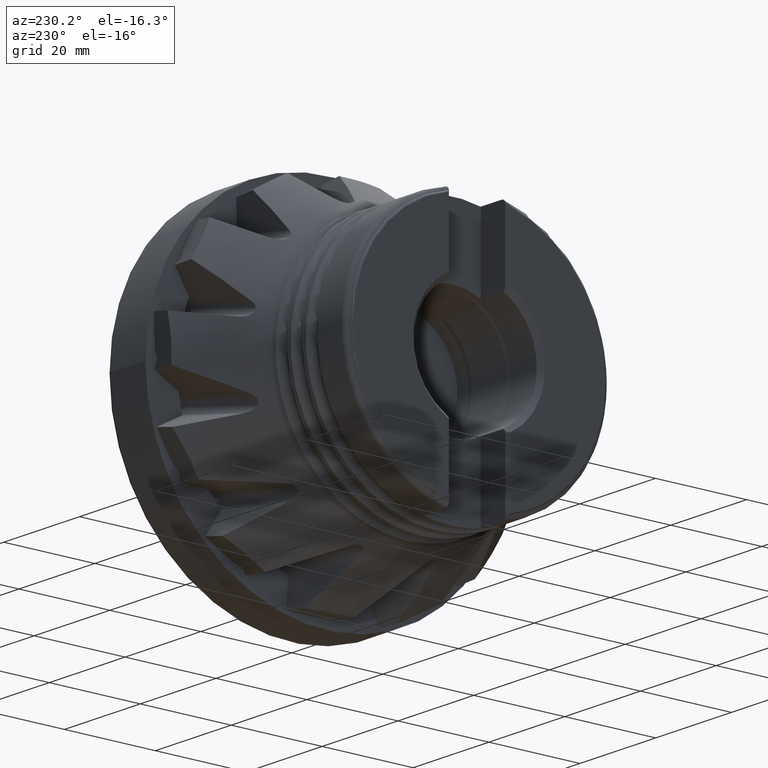
[diagram: clean part render]
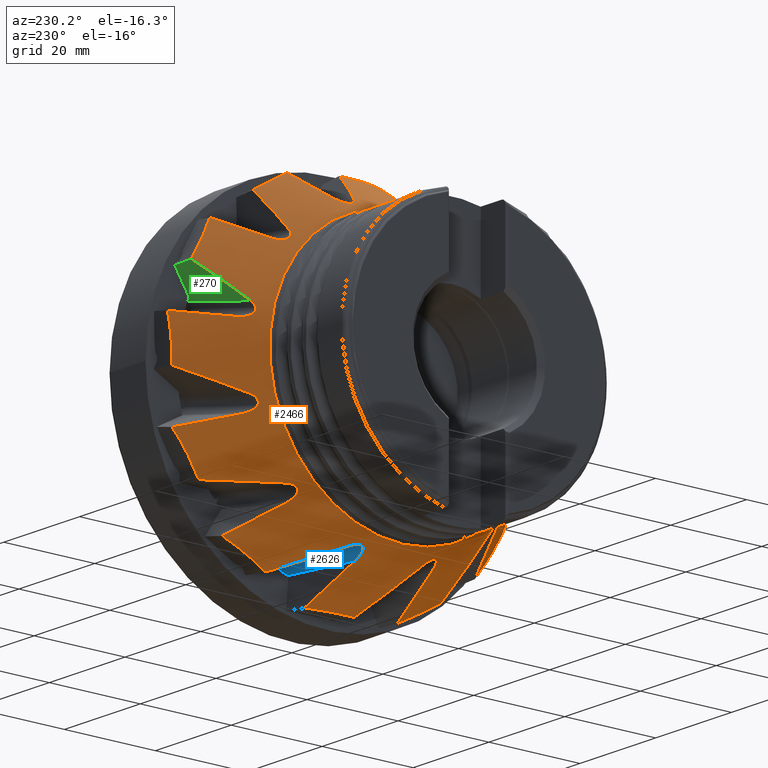
[diagram: same view with three faces highlighted in distinct colors, each labeled with its STEP entity id]
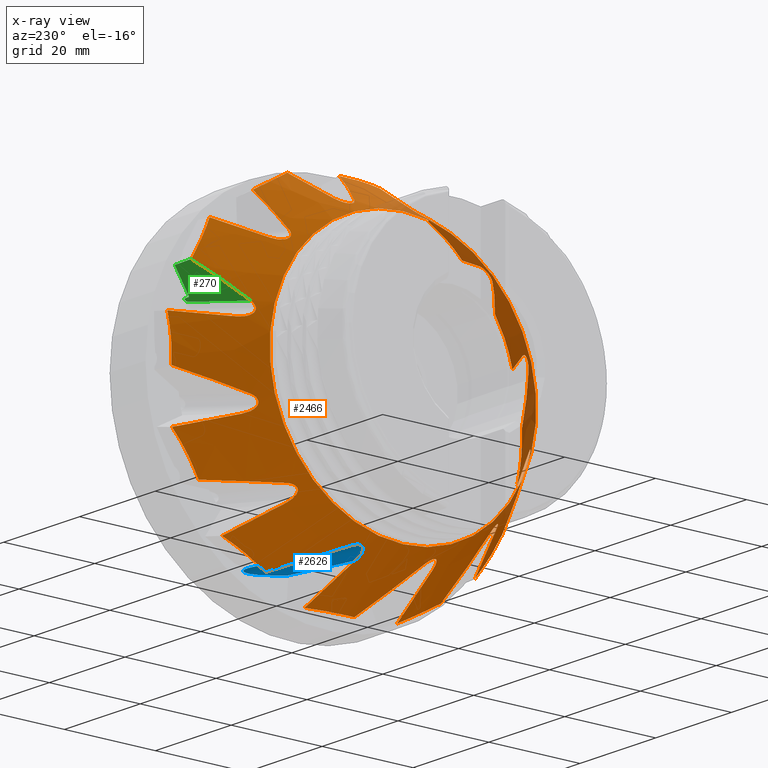
[diagram: x-ray of the same camera — body ghosted, the three highlighted faces saturated]
A machine part, auxiliary view with three faces highlighted in distinct colors.
The next image is the same camera in x-ray (body ghosted, the three faces saturated) — at least one of them is partly hidden behind the body in this view.
Their STEP definitions:

[orange] entity #2466 — the highlighted conical surface has half-angle 31.964 deg.
#6 = CARTESIAN_POINT ( 'NONE',  ( -14.50245683069126900, 1.716327760337661000, -38.53344224375283700 ) ) ;
#15 = CARTESIAN_POINT ( 'NONE',  ( -23.95634381777280100, -6.002362063384910400, 32.10710482000000400 ) ) ;
#29 = CARTESIAN_POINT ( 'NONE',  ( -26.23637035154452600, -30.17413354113161000, -8.093592315529900100 ) ) ;
#37 = B_SPLINE_CURVE_WITH_KNOTS ( 'NONE', 3,
 ( #6807, #6104, #1046, #2525, #7533, #3265 ),
 .UNSPECIFIED., .F., .F.,
 ( 4, 2, 4 ),
 ( 0.002670882668857964500, 0.01013373862457565500, 0.01759659458029334500 ),
 .UNSPECIFIED. ) ;
#74 = CARTESIAN_POINT ( 'NONE',  ( -16.41956356935596900, 33.59958166014608600, 16.38119490354847200 ) ) ;
#100 = CARTESIAN_POINT ( 'NONE',  ( -14.09405522904739500, 38.50273437307205200, 4.998577476799861900 ) ) ;
#126 = CARTESIAN_POINT ( 'NONE',  ( -25.66329812526937100, 21.95228866136434600, 22.72762872096095800 ) ) ;
#144 = CARTESIAN_POINT ( 'NONE',  ( -13.28596353631261500, -29.15651505166308500, -26.38338186583123200 ) ) ;
#150 = EDGE_LOOP ( 'NONE', ( #7420 ) ) ;
#152 = ORIENTED_EDGE ( 'NONE', *, *, #2997, .F. ) ;
#153 = CARTESIAN_POINT ( 'NONE',  ( -26.43145972181391600, 30.46430153338685900, 6.349721265692851400 ) ) ;
#158 = CARTESIAN_POINT ( 'NONE',  ( -26.43656601372532900, 20.73361750622617400, -23.20154062727347400 ) ) ;
#160 = VERTEX_POINT ( 'NONE', #2552 ) ;
#186 = CARTESIAN_POINT ( 'NONE',  ( -25.83897235197682800, 30.30651267653991000, 8.547849513563100700 ) ) ;
#216 = CARTESIAN_POINT ( 'NONE',  ( -23.95634381777280100, 6.002362063384910400, -32.10710482000000400 ) ) ;
#236 = CARTESIAN_POINT ( 'NONE',  ( -24.16180385806623600, 30.67903173243372100, -10.83204446609074300 ) ) ;
#241 = EDGE_CURVE ( 'NONE', #8420, #4599, #7311, .T. ) ;
#244 = CARTESIAN_POINT ( 'NONE',  ( -26.68521399476624400, 7.090582400616897400, -30.13793123856709500 ) ) ;
#258 = CARTESIAN_POINT ( 'NONE',  ( -26.65566046364435200, -6.732970761912515200, 30.23872857856563100 ) ) ;
#268 = CARTESIAN_POINT ( 'NONE',  ( -26.61825165677562300, 29.54200729530045100, -9.403546094650966600 ) ) ;
#292 = ORIENTED_EDGE ( 'NONE', *, *, #5100, .F. ) ;
#303 = CARTESIAN_POINT ( 'NONE',  ( -26.27269062512109300, -9.915291015342349500, -29.60161148464353400 ) ) ;
#328 = EDGE_LOOP ( 'NONE', ( #2747, #4591, #7070, #4535, #470, #2138, #6036, #5179, #6399, #1392, #4109, #732, #2814, #2169, #8762, #6718, #8131, #7983, #1783, #6382, #7777, #5938, #4471, #2736, #152, #373, #9159, #5152, #6501, #5984, #8672, #1423, #7781, #2346, #5507, #8010, #7353, #292, #832, #4433, #5035, #4380, #2275, #8544, #1119, #7207, #2918, #5245 ) ) ;
#332 = CARTESIAN_POINT ( 'NONE',  ( -13.28596353631259700, 29.15651505166326600, 26.38338186583104800 ) ) ;
#342 = CARTESIAN_POINT ( 'NONE',  ( -26.00740489113066900, -7.868786837977296500, -30.38149970848591200 ) ) ;
#353 = CARTESIAN_POINT ( 'NONE',  ( -20.40162969056832400, 22.96374009672295100, -26.25848482736412500 ) ) ;
#358 = CARTESIAN_POINT ( 'NONE',  ( -26.68510518042369000, -22.55361215291570100, -21.21108683484846900 ) ) ;
#373 = ORIENTED_EDGE ( 'NONE', *, *, #8834, .F. ) ;
#382 = CARTESIAN_POINT ( 'NONE',  ( -16.42059627970418500, 20.90760973462295200, 30.98548447944371300 ) ) ;
#396 = B_SPLINE_CURVE_WITH_KNOTS ( 'NONE', 3,
 ( #5521, #9141, #2675, #7696, #3421, #8436 ),
 .UNSPECIFIED., .F., .F.,
 ( 4, 2, 4 ),
 ( 0.003720353317233145200, 0.01118324883312819600, 0.01864614434902324800 ),
 .UNSPECIFIED. ) ;
#429 = CARTESIAN_POINT ( 'NONE',  ( -24.37110680605473300, 24.63472372675388700, 21.05199599503066600 ) ) ;
#430 = CARTESIAN_POINT ( 'NONE',  ( -16.42059627970419200, -20.90760973462273100, -30.98548447944386200 ) ) ;
#458 = CARTESIAN_POINT ( 'NONE',  ( -26.65780330816645400, 22.81437742541576000, 20.95554703521460000 ) ) ;
#463 = EDGE_CURVE ( 'NONE', #6415, #3839, #8625, .T. ) ;
#470 = ORIENTED_EDGE ( 'NONE', *, *, #4958, .F. ) ;
#501 = CARTESIAN_POINT ( 'NONE',  ( -14.23382223589801600, -38.51324350710709200, -4.174964224507678300 ) ) ;
#523 = CARTESIAN_POINT ( 'NONE',  ( -24.36854864686820600, 10.79770105951915000, 30.55433801257224500 ) ) ;
#525 = B_SPLINE_CURVE_WITH_KNOTS ( 'NONE', 3,
 ( #6632, #1586, #3071, #8097, #3788, #8817, #4511, #158, #5200, #894, #5950, #1611, #6664, #2365, #7371, #3097, #8132, #3825, #8844, #4539 ),
 .UNSPECIFIED., .F., .F.,
 ( 4, 2, 2, 2, 2, 2, 2, 2, 2, 4 ),
 ( 0.01624871983647119300, 0.01772917882844218500, 0.01846940832442768200, 0.01920963782041317700, 0.01957975256840592900, 0.01994986731639868100, 0.02031998206439143000, 0.02069009681238418200, 0.02143032630836969000, 0.02217055580435520200 ),
 .UNSPECIFIED. ) ;
#529 = CARTESIAN_POINT ( 'NONE',  ( -26.30846414731014700, 8.143058885012745700, 30.11457280907785600 ) ) ;
#587 = CARTESIAN_POINT ( 'NONE',  ( -13.28596353631260200, -8.270421407723548100, 38.44197365347930200 ) ) ;
#591 = EDGE_CURVE ( 'NONE', #7100, #8794, #1589, .T. ) ;
#602 = CARTESIAN_POINT ( 'NONE',  ( -14.54068276020251500, -32.52295587747887100, -20.74122093954711200 ) ) ;
#603 = CARTESIAN_POINT ( 'NONE',  ( -23.95634381777281200, -30.80674944778234800, 10.85535438039640400 ) ) ;
#604 = CARTESIAN_POINT ( 'NONE',  ( -16.42069721767170900, -37.28795636719365800, 2.613829652671821900 ) ) ;
#622 = CARTESIAN_POINT ( 'NONE',  ( -14.23381129410005700, 35.44096512635771000, -15.64093310065006600 ) ) ;
#635 = CARTESIAN_POINT ( 'NONE',  ( -13.52998417488409000, -29.57702074158087800, -25.69174065398328100 ) ) ;
#651 = CARTESIAN_POINT ( 'NONE',  ( -26.50569644529168300, -20.77180316100480100, 23.10948788641483600 ) ) ;
#664 = CARTESIAN_POINT ( 'NONE',  ( -14.54104484453531200, -34.22124119908384200, 17.79975892729438400 ) ) ;
#669 = CARTESIAN_POINT ( 'NONE',  ( -23.95634381777280100, -32.10710481999994000, -6.002362063385246100 ) ) ;
#672 = CARTESIAN_POINT ( 'NONE',  ( -26.65831131541637000, -29.55541260701981400, 9.278411729230290600 ) ) ;
#674 = B_SPLINE_CURVE_WITH_KNOTS ( 'NONE', 3,
 ( #2111, #6451, #3634, #8658, #4352, #6, #5050, #734, #5787, #1456 ),
 .UNSPECIFIED., .F., .F.,
 ( 4, 2, 2, 2, 4 ),
 ( 0.007670052221945174200, 0.008917902184450723900, 0.01016575214695627400, 0.01266145207196737300, 0.01765285192198957200 ),
 .UNSPECIFIED. ) ;
#681 = CARTESIAN_POINT ( 'NONE',  ( -25.66329812526938500, -22.72762872096102900, 21.95228866136426400 ) ) ;
#696 = CARTESIAN_POINT ( 'NONE',  ( -14.09404830448047400, 23.58029517486456000, -30.84503774167340500 ) ) ;
#732 = ORIENTED_EDGE ( 'NONE', *, *, #463, .F. ) ;
#734 = CARTESIAN_POINT ( 'NONE',  ( -14.12560063640742800, 5.033627885097406100, -38.50510628416615300 ) ) ;
#784 = EDGE_CURVE ( 'NONE', #6633, #3721, #3886, .T. ) ;
#828 = EDGE_CURVE ( 'NONE', #7921, #7921, #1652, .T. ) ;
#832 = ORIENTED_EDGE ( 'NONE', *, *, #6589, .F. ) ;
#837 = CARTESIAN_POINT ( 'NONE',  ( -13.53007155413353000, 38.46032822753877400, 7.460899932186534600 ) ) ;
#888 = CARTESIAN_POINT ( 'NONE',  ( -26.61593800667813500, 30.28846794153167800, 6.622295556624677300 ) ) ;
#894 = CARTESIAN_POINT ( 'NONE',  ( -26.61819214140366800, 20.88240260654174200, -22.91471866511050200 ) ) ;
#897 = B_SPLINE_CURVE_WITH_KNOTS ( 'NONE', 3,
 ( #4537, #2361, #2417, #7432 ),
 .UNSPECIFIED., .F., .F.,
 ( 4, 4 ),
 ( 0.002270627343193809600, 0.01488536746091243200 ),
 .UNSPECIFIED. ) ;
#942 = CARTESIAN_POINT ( 'NONE',  ( -25.39960290447304200, 5.907717006046970800, -31.20855555615269200 ) ) ;
#961 = CARTESIAN_POINT ( 'NONE',  ( -24.37286249792996900, -5.913828284859374800, 31.85924981217854000 ) ) ;
#974 = CARTESIAN_POINT ( 'NONE',  ( -25.66329812526939200, -7.647425291469885700, -30.65884817081524700 ) ) ;
#982 = CARTESIAN_POINT ( 'NONE',  ( -26.60039557691339600, 7.453016192199831900, -30.10483251205684500 ) ) ;
#997 = CARTESIAN_POINT ( 'NONE',  ( -26.68521399476624400, -7.090582400616897400, 30.13793123856709500 ) ) ;
#1006 = CARTESIAN_POINT ( 'NONE',  ( -26.69026731044514400, 29.60739409853205800, -9.043154187239247600 ) ) ;
#1029 = CARTESIAN_POINT ( 'NONE',  ( -14.49376950226488200, -34.19306757000816100, -17.84144778260473900 ) ) ;
#1037 = CARTESIAN_POINT ( 'NONE',  ( -26.50510046954251600, -9.628442181394945000, -29.54373758100053800 ) ) ;
#1042 = CARTESIAN_POINT ( 'NONE',  ( -26.69000104638856300, -30.16392550574075300, -6.965917833641852600 ) ) ;
#1046 = CARTESIAN_POINT ( 'NONE',  ( -22.05683831668321900, 5.589768287122013600, 33.40405421178566300 ) ) ;
#1052 = CARTESIAN_POINT ( 'NONE',  ( -25.41171534929922200, -24.06597392228638200, -20.71772100565936400 ) ) ;
#1057 = EDGE_CURVE ( 'NONE', #6996, #4211, #7297, .T. ) ;
#1064 = VERTEX_POINT ( 'NONE', #2097 ) ;
#1070 = CARTESIAN_POINT ( 'NONE',  ( -25.66329812526939200, -7.647425291469885700, -30.65884817081524700 ) ) ;
#1083 = EDGE_CURVE ( 'NONE', #3721, #6415, #5652, .T. ) ;
#1093 = CARTESIAN_POINT ( 'NONE',  ( -26.59996946905736300, -22.34440215565533800, -21.50796675048998800 ) ) ;
#1113 = VERTEX_POINT ( 'NONE', #3646 ) ;
#1119 = ORIENTED_EDGE ( 'NONE', *, *, #8653, .F. ) ;
#1139 = CARTESIAN_POINT ( 'NONE',  ( -23.88679859674797600, 10.31150884180609500, -31.06817589591443300 ) ) ;
#1149 = CARTESIAN_POINT ( 'NONE',  ( -26.43145972181391600, -30.46430153338680200, -6.349721265693065500 ) ) ;
#1153 = CARTESIAN_POINT ( 'NONE',  ( -23.95634381777279000, 24.80438738439725200, 21.25175043960343400 ) ) ;
#1175 = CARTESIAN_POINT ( 'NONE',  ( -26.68444483427083100, 22.54996835647806100, 21.21555399659920800 ) ) ;
#1218 = CARTESIAN_POINT ( 'NONE',  ( -14.49376950226487900, 20.69134125764273300, 32.54768080503321000 ) ) ;
#1219 = CARTESIAN_POINT ( 'NONE',  ( -29.34123479965128600, 0.0000000000000000000, -29.30323358987438800 ) ) ;
#1226 = CARTESIAN_POINT ( 'NONE',  ( -13.74260491616968900, -38.47630869130402000, -6.640292478574050300 ) ) ;
#1246 = CARTESIAN_POINT ( 'NONE',  ( -24.99196130335550600, 10.64184411434854400, 30.19684763762068200 ) ) ;
#1250 = CARTESIAN_POINT ( 'NONE',  ( -25.83850023254105500, 7.750324228670717000, 30.52050742342202100 ) ) ;
#1256 = CARTESIAN_POINT ( 'NONE',  ( -14.23376654341015000, -15.64067309941093200, -35.44111135278213700 ) ) ;
#1258 = CARTESIAN_POINT ( 'NONE',  ( -20.40162969056832400, -26.25848482736388000, -22.96374009672322500 ) ) ;
#1297 = VERTEX_POINT ( 'NONE', #5288 ) ;
#1308 = CARTESIAN_POINT ( 'NONE',  ( -16.84449460206425500, 35.22267137980116300, -11.65936168383154700 ) ) ;
#1312 = CARTESIAN_POINT ( 'NONE',  ( -25.66329812526939200, -7.647425291469885700, -30.65884817081524700 ) ) ;
#1313 = VERTEX_POINT ( 'NONE', #974 ) ;
#1318 = VERTEX_POINT ( 'NONE', #6739 ) ;
#1326 = CARTESIAN_POINT ( 'NONE',  ( -25.66329812526939200, -30.37505401243103300, -8.706559509451015100 ) ) ;
#1342 = CARTESIAN_POINT ( 'NONE',  ( -13.74257999504580000, 36.64165712719725600, -13.48740181712683000 ) ) ;
#1362 = CARTESIAN_POINT ( 'NONE',  ( -26.65618288996217400, -20.95132457754783300, 22.81963121438168700 ) ) ;
#1367 = VERTEX_POINT ( 'NONE', #7304 ) ;
#1380 = CARTESIAN_POINT ( 'NONE',  ( -26.68416005009187200, -29.64916848669366800, 8.918439745501229900 ) ) ;
#1387 = EDGE_CURVE ( 'NONE', #7914, #2605, #2032, .T. ) ;
#1391 = CARTESIAN_POINT ( 'NONE',  ( -16.84449460206425500, -11.65936168383117400, -35.22267137980127700 ) ) ;
#1392 = ORIENTED_EDGE ( 'NONE', *, *, #7177, .F. ) ;
#1394 = CARTESIAN_POINT ( 'NONE',  ( -14.23306320872640800, -22.87644548677456800, 31.26347515195904200 ) ) ;
#1410 = CARTESIAN_POINT ( 'NONE',  ( -13.53004350339070800, 25.69157249591052100, -29.57712297873106900 ) ) ;
#1423 = ORIENTED_EDGE ( 'NONE', *, *, #7392, .F. ) ;
#1440 = VERTEX_POINT ( 'NONE', #3093 ) ;
#1442 = EDGE_CURVE ( 'NONE', #2317, #3709, #5344, .T. ) ;
#1456 = CARTESIAN_POINT ( 'NONE',  ( -13.28596353631262200, 8.270421407723542700, -38.44197365347929500 ) ) ;
#1536 = EDGE_CURVE ( 'NONE', #7405, #2682, #37, .T. ) ;
#1552 = EDGE_CURVE ( 'NONE', #8794, #5735, #6048, .T. ) ;
#1555 = EDGE_CURVE ( 'NONE', #5281, #4283, #5077, .T. ) ;
#1586 = CARTESIAN_POINT ( 'NONE',  ( -24.37061089392443600, 21.05223483179987600, -24.63492658541848700 ) ) ;
#1589 = B_SPLINE_CURVE_WITH_KNOTS ( 'NONE', 3,
 ( #9346, #7787, #8617, #5012, #696, #5738, #1410, #6465 ),
 .UNSPECIFIED., .F., .F.,
 ( 4, 2, 2, 4 ),
 ( 0.01202148852015864600, 0.01703344000488784700, 0.01953941574725245200, 0.02204539148961706000 ),
 .UNSPECIFIED. ) ;
#1608 = CARTESIAN_POINT ( 'NONE',  ( -26.69000104638855200, 30.16392550574079900, 6.965917833641640300 ) ) ;
#1611 = CARTESIAN_POINT ( 'NONE',  ( -26.69020364293890400, 21.11833743228452700, -22.63613519793551300 ) ) ;
#1625 = CARTESIAN_POINT ( 'NONE',  ( -22.05666580166291600, -26.13403047259189200, 21.54288893587279600 ) ) ;
#1652 = CIRCLE ( 'NONE', #2292, 29.30323358987438800 ) ;
#1653 = CARTESIAN_POINT ( 'NONE',  ( -13.28596353631260200, -8.270421407723548100, 38.44197365347930200 ) ) ;
#1656 = CARTESIAN_POINT ( 'NONE',  ( -24.78639802206789300, -5.869906732556249700, 31.60501136159715000 ) ) ;
#1659 = CARTESIAN_POINT ( 'NONE',  ( -14.49376950226487900, -20.69134125764249900, -32.54768080503335200 ) ) ;
#1665 = CARTESIAN_POINT ( 'NONE',  ( -23.95634381777280100, 6.002362063384910400, -32.10710482000000400 ) ) ;
#1679 = CARTESIAN_POINT ( 'NONE',  ( -25.90120813445084000, 6.027277061822270600, -30.86684458742879400 ) ) ;
#1697 = CARTESIAN_POINT ( 'NONE',  ( -25.39960290447304200, -5.907717006046970800, 31.20855555615269200 ) ) ;
#1704 = CARTESIAN_POINT ( 'NONE',  ( -24.36792434906399100, 30.55471371376640000, -10.79780705245082300 ) ) ;
#1717 = CARTESIAN_POINT ( 'NONE',  ( -26.44095746151634100, 7.788364420145513600, -30.12255012662490100 ) ) ;
#1727 = EDGE_CURVE ( 'NONE', #2682, #8110, #2415, .T. ) ;
#1733 = CARTESIAN_POINT ( 'NONE',  ( -26.60039557691339600, -7.453016192199831900, 30.10483251205684500 ) ) ;
#1740 = CARTESIAN_POINT ( 'NONE',  ( -26.63886189057918600, 29.74361114744772300, -8.699456605744433800 ) ) ;
#1768 = CARTESIAN_POINT ( 'NONE',  ( -14.49376950226487200, 34.19306757000828900, 17.84144778260450800 ) ) ;
#1780 = CARTESIAN_POINT ( 'NONE',  ( -26.65594196265888300, -9.287601936977013800, -29.55407428973244100 ) ) ;
#1783 = ORIENTED_EDGE ( 'NONE', *, *, #4073, .F. ) ;
#1796 = CARTESIAN_POINT ( 'NONE',  ( -25.90487764279100000, -23.71488526581163500, -20.65309496468082500 ) ) ;
#1799 = B_SPLINE_CURVE_WITH_KNOTS ( 'NONE', 3,
 ( #5543, #3436, #5574, #1256, #6316, #1995, #7011, #2728 ),
 .UNSPECIFIED., .F., .F.,
 ( 4, 2, 2, 4 ),
 ( 0.01202148852015863900, 0.01703373307244536400, 0.01953985534858872200, 0.02204597762473208000 ),
 .UNSPECIFIED. ) ;
#1828 = CARTESIAN_POINT ( 'NONE',  ( -26.43985672575193000, -22.19200362091655500, -21.80789372458143700 ) ) ;
#1837 = CARTESIAN_POINT ( 'NONE',  ( -25.66329812526939200, -21.95228866136418200, -22.72762872096110700 ) ) ;
#1886 = CARTESIAN_POINT ( 'NONE',  ( -26.65566046364435200, -30.23872857856555600, -6.732970761912834900 ) ) ;
#1917 = B_SPLINE_CURVE_WITH_KNOTS ( 'NONE', 3,
 ( #7706, #2689, #523, #5567, #1246, #6306, #1988, #7003, #6279, #1967, #6974, #2695, #7710, #3431, #8456, #4153, #9192, #4850, #529, #5571, #1250, #6311 ),
 .UNSPECIFIED., .F., .F.,
 ( 4, 2, 2, 2, 2, 2, 2, 2, 2, 2, 4 ),
 ( 0.01590055192623619800, 0.01663413641354205600, 0.01736772090084791300, 0.01810130538815377100, 0.01883488987545963200, 0.01920168211911255400, 0.01956847436276547600, 0.01993526660641840200, 0.02030205885007132400, 0.02103564333737717500, 0.02176922782468302500 ),
 .UNSPECIFIED. ) ;
#1923 = CARTESIAN_POINT ( 'NONE',  ( -24.78639802206788500, -31.60501136159708200, -5.869906732556579200 ) ) ;
#1933 = CARTESIAN_POINT ( 'NONE',  ( -26.59815248436861500, 22.34199543148281500, 21.51209700999372700 ) ) ;
#1967 = CARTESIAN_POINT ( 'NONE',  ( -26.43666687562154400, 9.726350276587817600, 29.55653427351125000 ) ) ;
#1970 = EDGE_CURVE ( 'NONE', #5976, #3972, #6254, .T. ) ;
#1975 = CARTESIAN_POINT ( 'NONE',  ( -13.28596353631260200, -38.44197365347921600, -8.270421407723951300 ) ) ;
#1988 = CARTESIAN_POINT ( 'NONE',  ( -25.61031746389323200, 10.39059152854457600, 29.87609558610624600 ) ) ;
#1995 = CARTESIAN_POINT ( 'NONE',  ( -13.74247807111497500, -13.48703148007510000, -36.64186209211647600 ) ) ;
#2032 = B_SPLINE_CURVE_WITH_KNOTS ( 'NONE', 3,
 ( #5903, #2298, #6627, #2325, #7335, #3065 ),
 .UNSPECIFIED., .F., .F.,
 ( 4, 2, 4 ),
 ( 0.002670882668857972800, 0.01013373862457567900, 0.01759659458029338600 ),
 .UNSPECIFIED. ) ;
#2050 = CARTESIAN_POINT ( 'NONE',  ( -23.95634381777280100, -6.002362063384910400, 32.10710482000000400 ) ) ;
#2072 = CARTESIAN_POINT ( 'NONE',  ( -23.88679859674797300, -31.06817589591432600, -10.31150884180641800 ) ) ;
#2073 = EDGE_CURVE ( 'NONE', #4332, #5281, #5931, .T. ) ;
#2088 = CARTESIAN_POINT ( 'NONE',  ( -13.28596353631260600, 37.42693645938696500, -12.05859178764831300 ) ) ;
#2095 = EDGE_CURVE ( 'NONE', #160, #7405, #1917, .T. ) ;
#2097 = CARTESIAN_POINT ( 'NONE',  ( -23.95634381777279400, -10.85535438039629100, -30.80674944778239400 ) ) ;
#2098 = CARTESIAN_POINT ( 'NONE',  ( -24.79447797462460600, -30.30089454031148600, 10.71749052872232800 ) ) ;
#2110 = CARTESIAN_POINT ( 'NONE',  ( -26.68510518042368300, -21.21108683484839100, 22.55361215291577500 ) ) ;
#2111 = CARTESIAN_POINT ( 'NONE',  ( -14.49376950227699000, -1.645386764980826500, -38.53278904023946400 ) ) ;
#2129 = CARTESIAN_POINT ( 'NONE',  ( -26.59770633540257700, -29.80165455716810300, 8.591499821219336800 ) ) ;
#2138 = ORIENTED_EDGE ( 'NONE', *, *, #1057, .F. ) ;
#2143 = CARTESIAN_POINT ( 'NONE',  ( -25.66329812526939200, -30.37505401243103300, -8.706559509451015100 ) ) ;
#2145 = CARTESIAN_POINT ( 'NONE',  ( -13.74209566828747600, -24.99048724331694200, 30.00030560947825000 ) ) ;
#2169 = ORIENTED_EDGE ( 'NONE', *, *, #784, .F. ) ;
#2198 = EDGE_CURVE ( 'NONE', #1367, #3270, #4547, .T. ) ;
#2272 = CARTESIAN_POINT ( 'NONE',  ( -14.23381129410007000, -35.44096512635783800, 15.64093310064982100 ) ) ;
#2275 = ORIENTED_EDGE ( 'NONE', *, *, #3979, .F. ) ;
#2292 = AXIS2_PLACEMENT_3D ( 'NONE', #7441, #3165, #8199 ) ;
#2298 = CARTESIAN_POINT ( 'NONE',  ( -23.88818259465593400, 32.06049118206922800, -6.604872183217872300 ) ) ;
#2317 = VERTEX_POINT ( 'NONE', #5145 ) ;
#2325 = CARTESIAN_POINT ( 'NONE',  ( -18.32332900770963500, 36.01802786748304900, -3.594133092867745700 ) ) ;
#2328 = CARTESIAN_POINT ( 'NONE',  ( -24.78639802206788900, 31.60501136159712100, 5.869906732556359000 ) ) ;
#2346 = ORIENTED_EDGE ( 'NONE', *, *, #8531, .F. ) ;
#2360 = CARTESIAN_POINT ( 'NONE',  ( -26.64019263598379400, 30.10871390889221600, 7.333275982313516300 ) ) ;
#2361 = CARTESIAN_POINT ( 'NONE',  ( -16.84449383990864000, 7.514032441792643600, -36.33340949758077400 ) ) ;
#2365 = CARTESIAN_POINT ( 'NONE',  ( -26.63930934284941900, 21.40770484894167700, -22.40660278406170000 ) ) ;
#2373 = CARTESIAN_POINT ( 'NONE',  ( -16.42059627970418800, -30.98548447944378700, 20.90760973462284200 ) ) ;
#2414 = CARTESIAN_POINT ( 'NONE',  ( -26.18152210316624500, 6.156221925208770400, -30.66302960372630100 ) ) ;
#2415 = B_SPLINE_CURVE_WITH_KNOTS ( 'NONE', 3,
 ( #6203, #6874, #2624, #7639, #3362, #8385, #4079, #9113 ),
 .UNSPECIFIED., .F., .F.,
 ( 4, 2, 2, 4 ),
 ( 0.01202148852015888800, 0.01703341084521816900, 0.01953937200774780900, 0.02204533317027744900 ),
 .UNSPECIFIED. ) ;
#2417 = CARTESIAN_POINT ( 'NONE',  ( -20.40162773120785300, 6.757940292458223500, -34.22238613969069100 ) ) ;
#2430 = CARTESIAN_POINT ( 'NONE',  ( -13.00000000000000000, 0.0000000000000000000, 0.0000000000000000000 ) ) ;
#2431 = CARTESIAN_POINT ( 'NONE',  ( -25.90120813445084000, -6.027277061822270600, 30.86684458742879400 ) ) ;
#2440 = CARTESIAN_POINT ( 'NONE',  ( -24.99042757669768000, 30.19768632354774600, -10.64234343368137000 ) ) ;
#2453 = CARTESIAN_POINT ( 'NONE',  ( -26.23637035154452900, 8.093592315529583900, -30.17413354113169900 ) ) ;
#2466 = ADVANCED_FACE ( 'NONE', ( #4181, #3829 ), #4834, .T. ) ;
#2470 = DIRECTION ( 'NONE',  ( 1.000000000000000000, -0.0000000000000000000, -0.0000000000000000000 ) ) ;
#2471 = CARTESIAN_POINT ( 'NONE',  ( -26.44095746151634100, -7.788364420145513600, 30.12255012662490100 ) ) ;
#2481 = CARTESIAN_POINT ( 'NONE',  ( -26.44892755026437200, 29.97966041821123900, -8.305161149147947300 ) ) ;
#2485 = CARTESIAN_POINT ( 'NONE',  ( -26.50399601406617100, -30.40087968092132400, -6.431854647501626100 ) ) ;
#2510 = CARTESIAN_POINT ( 'NONE',  ( -26.68515832139306800, -8.927143836036359300, -29.64590440319451800 ) ) ;
#2514 = VERTEX_POINT ( 'NONE', #8272 ) ;
#2517 = CARTESIAN_POINT ( 'NONE',  ( -26.68521399476624000, -30.13793123856702400, -7.090582400617213600 ) ) ;
#2525 = CARTESIAN_POINT ( 'NONE',  ( -18.32332900770963500, 3.594133092867627600, 36.01802786748304900 ) ) ;
#2531 = CARTESIAN_POINT ( 'NONE',  ( -26.18485156096668100, -23.47371179623721800, -20.66338328167567400 ) ) ;
#2552 = CARTESIAN_POINT ( 'NONE',  ( -23.95634381777279400, 10.85535438039650700, 30.80674944778232300 ) ) ;
#2567 = CARTESIAN_POINT ( 'NONE',  ( -26.23616842969417800, -22.08467303265714000, -22.09659939806190100 ) ) ;
#2605 = VERTEX_POINT ( 'NONE', #8011 ) ;
#2619 = CARTESIAN_POINT ( 'NONE',  ( -22.05489943229073200, 11.86276477780026700, -31.72432525034476900 ) ) ;
#2624 = CARTESIAN_POINT ( 'NONE',  ( -14.54104624591141700, -1.695535138566920200, 38.53634379645846100 ) ) ;
#2632 = CARTESIAN_POINT ( 'NONE',  ( -25.41393985324788200, 24.06456951945559200, 20.71722508908830900 ) ) ;
#2649 = CARTESIAN_POINT ( 'NONE',  ( -20.40162776725229000, -34.22238611824190000, -6.757940284797101100 ) ) ;
#2660 = CARTESIAN_POINT ( 'NONE',  ( -26.30991547064257200, 22.11007728128212300, 22.00647362203274700 ) ) ;
#2672 = CARTESIAN_POINT ( 'NONE',  ( -14.49376950227699000, -1.645386764980826500, -38.53278904023946400 ) ) ;
#2675 = CARTESIAN_POINT ( 'NONE',  ( -22.05666580166293400, 26.13403047259172900, -21.54288893587298800 ) ) ;
#2682 = VERTEX_POINT ( 'NONE', #5891 ) ;
#2689 = CARTESIAN_POINT ( 'NONE',  ( -24.16213420827445500, 10.83200698709941400, 30.67882638070793900 ) ) ;
#2693 = CARTESIAN_POINT ( 'NONE',  ( -14.54104484453531200, 17.79975892729450800, 34.22124119908378500 ) ) ;
#2695 = CARTESIAN_POINT ( 'NONE',  ( -26.61886203449163100, 9.401769938616549600, 29.54217142575402000 ) ) ;
#2697 = CARTESIAN_POINT ( 'NONE',  ( -13.28596353631261500, -29.15651505166308500, -26.38338186583123200 ) ) ;
#2714 = CARTESIAN_POINT ( 'NONE',  ( -13.28596353631261100, 12.05859178764817900, 37.42693645938700800 ) ) ;
#2728 = CARTESIAN_POINT ( 'NONE',  ( -13.28596353631260600, -12.05859178764792000, -37.42693645938710000 ) ) ;
#2736 = ORIENTED_EDGE ( 'NONE', *, *, #2095, .F. ) ;
#2742 = EDGE_CURVE ( 'NONE', #4092, #5475, #4165, .T. ) ;
#2747 = ORIENTED_EDGE ( 'NONE', *, *, #6160, .F. ) ;
#2777 = CARTESIAN_POINT ( 'NONE',  ( -14.49376950226487500, -38.53278904024728000, 1.645386764974873900 ) ) ;
#2806 = CARTESIAN_POINT ( 'NONE',  ( -18.32151591003464500, -32.99018429332981800, -14.89783459346762700 ) ) ;
#2814 = ORIENTED_EDGE ( 'NONE', *, *, #1083, .F. ) ;
#2815 = CARTESIAN_POINT ( 'NONE',  ( -25.41171534929921400, -20.71772100565928900, 24.06597392228644900 ) ) ;
#2834 = CARTESIAN_POINT ( 'NONE',  ( -25.41514942414816500, -29.97331098806465400, 10.48139422242168300 ) ) ;
#2841 = CARTESIAN_POINT ( 'NONE',  ( -26.59996946905736700, -21.50796675048991700, 22.34440215565541600 ) ) ;
#2846 = CARTESIAN_POINT ( 'NONE',  ( -14.49376950226485400, -17.84144778260440100, 34.19306757000835300 ) ) ;
#2863 = CARTESIAN_POINT ( 'NONE',  ( -26.30920539410819700, -30.11390788026926700, 8.143759610569350800 ) ) ;
#2875 = CARTESIAN_POINT ( 'NONE',  ( -23.95634381777279400, -10.85535438039629100, -30.80674944778239400 ) ) ;
#2877 = CARTESIAN_POINT ( 'NONE',  ( -13.28596353631260600, -26.38338186583114700, 29.15651505166317000 ) ) ;
#2908 = CARTESIAN_POINT ( 'NONE',  ( -25.66329812526939200, -8.706559509450695300, 30.37505401243112500 ) ) ;
#2914 = B_SPLINE_CURVE_WITH_KNOTS ( 'NONE', 3,
 ( #2846, #9330, #5720, #1394, #6456, #2145, #7147, #2877 ),
 .UNSPECIFIED., .F., .F.,
 ( 4, 2, 2, 4 ),
 ( 0.01135717157010932000, 0.01636724659048991600, 0.01887228410068021700, 0.02137732161087051500 ),
 .UNSPECIFIED. ) ;
#2918 = ORIENTED_EDGE ( 'NONE', *, *, #5109, .F. ) ;
#2940 = CARTESIAN_POINT ( 'NONE',  ( -23.95634381777279700, -21.25175043960351900, 24.80438738439717000 ) ) ;
#2976 = CARTESIAN_POINT ( 'NONE',  ( -14.49376950226488200, 38.53278904024726600, -1.645386764975143500 ) ) ;
#2993 = CARTESIAN_POINT ( 'NONE',  ( -13.74257999504581400, -36.64165712719733400, 13.48740181712658000 ) ) ;
#2997 = EDGE_CURVE ( 'NONE', #3036, #160, #7950, .T. ) ;
#3036 = VERTEX_POINT ( 'NONE', #7803 ) ;
#3061 = EDGE_CURVE ( 'NONE', #7212, #8137, #8920, .T. ) ;
#3065 = CARTESIAN_POINT ( 'NONE',  ( -14.49376950226488200, 38.53278904024726600, -1.645386764975143500 ) ) ;
#3067 = CARTESIAN_POINT ( 'NONE',  ( -25.60527527560363100, 31.07217155891241600, 5.938409964936145300 ) ) ;
#3071 = CARTESIAN_POINT ( 'NONE',  ( -24.79283413919334200, 20.88326156676193100, -24.43284818479658700 ) ) ;
#3093 = CARTESIAN_POINT ( 'NONE',  ( -14.49376950226487200, 34.19306757000828900, 17.84144778260450800 ) ) ;
#3096 = CARTESIAN_POINT ( 'NONE',  ( -26.50129021879703800, 30.11175822500247900, 7.679194400305410000 ) ) ;
#3097 = CARTESIAN_POINT ( 'NONE',  ( -26.44948059817177800, 21.80998597974377900, -22.18241299833122000 ) ) ;
#3111 = CARTESIAN_POINT ( 'NONE',  ( -14.49376950226487900, 20.69134125764273300, 32.54768080503321000 ) ) ;
#3151 = CARTESIAN_POINT ( 'NONE',  ( -26.43145972181391600, 6.349721265692742200, -30.46430153338687000 ) ) ;
#3165 = DIRECTION ( 'NONE',  ( 1.000000000000000000, -0.0000000000000000000, -0.0000000000000000000 ) ) ;
#3167 = DIRECTION ( 'NONE',  ( 0.0000000000000000000, 0.0000000000000000000, -1.000000000000000000 ) ) ;
#3168 = CARTESIAN_POINT ( 'NONE',  ( -26.18152210316624500, -6.156221925208770400, 30.66302960372630100 ) ) ;
#3170 = CARTESIAN_POINT ( 'NONE',  ( -25.66329812526939900, -30.65884817081520800, 7.647425291469995800 ) ) ;
#3171 = CARTESIAN_POINT ( 'NONE',  ( -23.95634381777279400, -10.85535438039629100, -30.80674944778239400 ) ) ;
#3176 = CARTESIAN_POINT ( 'NONE',  ( -25.60959565169321600, 29.87641780110606100, -10.39103903189046800 ) ) ;
#3190 = CARTESIAN_POINT ( 'NONE',  ( -25.83897235197683200, 8.547849513563004800, -30.30651267653994200 ) ) ;
#3198 = B_SPLINE_CURVE_WITH_KNOTS ( 'NONE', 3,
 ( #6454, #1391, #7145, #2875 ),
 .UNSPECIFIED., .F., .F.,
 ( 4, 4 ),
 ( 0.002270626797176308500, 0.01488536697822706200 ),
 .UNSPECIFIED. ) ;
#3201 = EDGE_CURVE ( 'NONE', #8137, #6633, #6655, .T. ) ;
#3206 = CARTESIAN_POINT ( 'NONE',  ( -25.66329812526938500, -22.72762872096102900, 21.95228866136426400 ) ) ;
#3210 = CARTESIAN_POINT ( 'NONE',  ( -26.23637035154452900, -8.093592315529583900, 30.17413354113169900 ) ) ;
#3214 = CARTESIAN_POINT ( 'NONE',  ( -25.41099010743179300, -10.48320445850031200, -29.97542705438625200 ) ) ;
#3217 = CARTESIAN_POINT ( 'NONE',  ( -26.00516596076989400, 30.38338949279299300, -7.867061055059828300 ) ) ;
#3240 = CARTESIAN_POINT ( 'NONE',  ( -14.54068276020249200, 32.52295587747902800, 20.74122093954688900 ) ) ;
#3250 = CARTESIAN_POINT ( 'NONE',  ( -26.60012888209308500, -8.597224817262883800, -29.79843100696621500 ) ) ;
#3265 = CARTESIAN_POINT ( 'NONE',  ( -14.49376950226489800, 1.645386764975020900, 38.53278904024725900 ) ) ;
#3270 = VERTEX_POINT ( 'NONE', #6229 ) ;
#3272 = CARTESIAN_POINT ( 'NONE',  ( -26.43398297472932200, -23.20483737320575900, -20.73234701721463600 ) ) ;
#3275 = VERTEX_POINT ( 'NONE', #4769 ) ;
#3285 = EDGE_CURVE ( 'NONE', #1318, #8420, #5806, .T. ) ;
#3289 = CARTESIAN_POINT ( 'NONE',  ( -25.39960290447305300, -31.20855555615263900, -5.907717006047298500 ) ) ;
#3301 = CARTESIAN_POINT ( 'NONE',  ( -25.83839349402272500, -21.97221923158671300, -22.55647698521083600 ) ) ;
#3317 = CARTESIAN_POINT ( 'NONE',  ( -25.66329812526939200, 8.706559509450695300, -30.37505401243112500 ) ) ;
#3334 = CARTESIAN_POINT ( 'NONE',  ( -25.66329812526939200, -21.95228866136418200, -22.72762872096110700 ) ) ;
#3352 = CARTESIAN_POINT ( 'NONE',  ( -16.41956356935597600, 16.38119490354834100, -33.59958166014613600 ) ) ;
#3362 = CARTESIAN_POINT ( 'NONE',  ( -14.09405522904737000, -4.998577476799813000, 38.50273437307206600 ) ) ;
#3368 = CARTESIAN_POINT ( 'NONE',  ( -26.00795764748526300, 23.63694190669419700, 20.64473754026734700 ) ) ;
#3384 = VERTEX_POINT ( 'NONE', #4868 ) ;
#3398 = CARTESIAN_POINT ( 'NONE',  ( -24.37286249792995800, -31.85924981217846900, -5.913828284859707000 ) ) ;
#3403 = CARTESIAN_POINT ( 'NONE',  ( -25.83880748676882200, 21.97226635511478700, 22.55607231672866700 ) ) ;
#3414 = CARTESIAN_POINT ( 'NONE',  ( -14.59607434738554800, -38.54048138019238900, -0.03110300771260920600 ) ) ;
#3421 = CARTESIAN_POINT ( 'NONE',  ( -16.42059627970419600, 30.98548447944363100, -20.90760973462305500 ) ) ;
#3430 = CARTESIAN_POINT ( 'NONE',  ( -14.09404019480410100, 14.92239952495110300, 35.84367542166528900 ) ) ;
#3431 = CARTESIAN_POINT ( 'NONE',  ( -26.69047592984579300, 9.038466051319431900, 29.60869440085220500 ) ) ;
#3436 = CARTESIAN_POINT ( 'NONE',  ( -14.59608092478328900, -19.24321159790903100, -33.39264177404324100 ) ) ;
#3507 = CARTESIAN_POINT ( 'NONE',  ( -25.66329812526939900, -30.65884817081520800, 7.647425291469995800 ) ) ;
#3520 = CARTESIAN_POINT ( 'NONE',  ( -20.40162864178444800, 33.01642535529069300, -11.25864499601100000 ) ) ;
#3534 = CARTESIAN_POINT ( 'NONE',  ( -14.49376950226488200, -34.19306757000816100, -17.84144778260473900 ) ) ;
#3544 = CARTESIAN_POINT ( 'NONE',  ( -25.90487764279098200, -20.65309496468074400, 23.71488526581169900 ) ) ;
#3552 = CARTESIAN_POINT ( 'NONE',  ( -22.05637156361665400, -5.589512789088986200, -33.40439118685159800 ) ) ;
#3561 = CARTESIAN_POINT ( 'NONE',  ( -26.00987714435875700, -29.69653480347423600, 10.14647253619812700 ) ) ;
#3568 = CARTESIAN_POINT ( 'NONE',  ( -26.43985672575193400, -21.80789372458136900, 22.19200362091664000 ) ) ;
#3570 = CARTESIAN_POINT ( 'NONE',  ( -16.84449547990069700, 27.70863874284017600, 24.67404694047589300 ) ) ;
#3590 = CARTESIAN_POINT ( 'NONE',  ( -25.83804525440497500, -30.52086667717973600, 7.750057012896880900 ) ) ;
#3634 = CARTESIAN_POINT ( 'NONE',  ( -14.53512281447863500, -0.8091572233473048900, -38.53589841141173600 ) ) ;
#3644 = CARTESIAN_POINT ( 'NONE',  ( -18.32151591003463100, -14.89783459346729600, 32.99018429332997500 ) ) ;
#3646 = CARTESIAN_POINT ( 'NONE',  ( -23.95634381777280800, -24.80438738439709900, -21.25175043960359700 ) ) ;
#3655 = CARTESIAN_POINT ( 'NONE',  ( -23.88679859674796200, 31.06817589591441100, 10.31150884180620200 ) ) ;
#3663 = EDGE_CURVE ( 'NONE', #8327, #1297, #674, .T. ) ;
#3691 = CARTESIAN_POINT ( 'NONE',  ( -13.28596353631261500, -37.42693645938704300, 12.05859178764805500 ) ) ;
#3709 = VERTEX_POINT ( 'NONE', #5839 ) ;
#3721 = VERTEX_POINT ( 'NONE', #3691 ) ;
#3737 = CARTESIAN_POINT ( 'NONE',  ( -13.28596353631261500, -37.42693645938704300, 12.05859178764805500 ) ) ;
#3785 = CARTESIAN_POINT ( 'NONE',  ( -25.99714683694408300, 30.79868885350156300, 6.063884427267821800 ) ) ;
#3788 = CARTESIAN_POINT ( 'NONE',  ( -25.61481857999077900, 20.67744015900873900, -23.93347712132385800 ) ) ;
#3792 = VERTEX_POINT ( 'NONE', #1659 ) ;
#3811 = VERTEX_POINT ( 'NONE', #7414 ) ;
#3815 = CARTESIAN_POINT ( 'NONE',  ( -20.40162776725229000, 34.22238611824194300, 6.757940284796863000 ) ) ;
#3818 = CARTESIAN_POINT ( 'NONE',  ( -26.30835633523882300, 30.15379729164694900, 7.995666782704564200 ) ) ;
#3825 = CARTESIAN_POINT ( 'NONE',  ( -26.00534064900772100, 22.37915438770501800, -22.00472550151864900 ) ) ;
#3829 = FACE_BOUND ( 'NONE', #150, .T. ) ;
#3839 = VERTEX_POINT ( 'NONE', #3170 ) ;
#3851 = CARTESIAN_POINT ( 'NONE',  ( -24.78639802206789300, 5.869906732556249700, -31.60501136159715000 ) ) ;
#3882 = CARTESIAN_POINT ( 'NONE',  ( -26.61593800667813900, 6.622295556624569800, -30.28846794153169200 ) ) ;
#3886 = B_SPLINE_CURVE_WITH_KNOTS ( 'NONE', 3,
 ( #6569, #5851, #664, #2272, #7276, #2993, #8030, #3737 ),
 .UNSPECIFIED., .F., .F.,
 ( 4, 2, 2, 4 ),
 ( 0.01202148852015864200, 0.01703347415482951700, 0.01953946697216495100, 0.02204545978950038900 ),
 .UNSPECIFIED. ) ;
#3891 = B_SPLINE_CURVE_WITH_KNOTS ( 'NONE', 3,
 ( #587, #4812, #6364, #2050 ),
 .UNSPECIFIED., .F., .F.,
 ( 4, 4 ),
 ( 0.002110739340146115600, 0.01472547947591914700 ),
 .UNSPECIFIED. ) ;
#3897 = CARTESIAN_POINT ( 'NONE',  ( -26.43145972181391600, -6.349721265692742200, 30.46430153338687000 ) ) ;
#3903 = CARTESIAN_POINT ( 'NONE',  ( -26.19580973868956200, 29.62254472620841000, -10.00451554876776500 ) ) ;
#3908 = CARTESIAN_POINT ( 'NONE',  ( -23.95634381777280100, -32.10710481999994000, -6.002362063385246100 ) ) ;
#3932 = CARTESIAN_POINT ( 'NONE',  ( -25.83897235197683200, -8.547849513563004800, 30.30651267653994200 ) ) ;
#3939 = CARTESIAN_POINT ( 'NONE',  ( -25.90388840403369000, -10.21179579896078200, -29.74397684245896300 ) ) ;
#3942 = CARTESIAN_POINT ( 'NONE',  ( -25.66329812526939200, 30.65884817081516200, -7.647425291470206300 ) ) ;
#3956 = CARTESIAN_POINT ( 'NONE',  ( -24.36999227893046400, -24.63517963712614600, -21.05253276362629900 ) ) ;
#3962 = CARTESIAN_POINT ( 'NONE',  ( -14.09324453515542600, 30.84289822292789700, 23.58388005859726600 ) ) ;
#3970 = CARTESIAN_POINT ( 'NONE',  ( -26.44002812500576000, -8.315119142648987000, -29.98201816027118800 ) ) ;
#3972 = VERTEX_POINT ( 'NONE', #3317 ) ;
#3976 = CARTESIAN_POINT ( 'NONE',  ( -26.44095746151633400, -30.12255012662480500, -7.788364420145829700 ) ) ;
#3979 = EDGE_CURVE ( 'NONE', #3972, #7100, #4221, .T. ) ;
#3990 = CARTESIAN_POINT ( 'NONE',  ( -26.61667431476576700, -22.91775291256807300, -20.88047266580903000 ) ) ;
#4073 = EDGE_CURVE ( 'NONE', #5475, #2514, #8534, .T. ) ;
#4079 = CARTESIAN_POINT ( 'NONE',  ( -13.53007155413352100, -7.460899932186423600, 38.46032822753879500 ) ) ;
#4086 = CARTESIAN_POINT ( 'NONE',  ( -26.43856405802995400, 23.19905004962004500, 20.73453527120349400 ) ) ;
#4092 = VERTEX_POINT ( 'NONE', #15 ) ;
#4109 = ORIENTED_EDGE ( 'NONE', *, *, #5151, .F. ) ;
#4132 = CARTESIAN_POINT ( 'NONE',  ( -14.49376950226487500, -38.53278904024728000, 1.645386764974873900 ) ) ;
#4152 = CARTESIAN_POINT ( 'NONE',  ( -13.53001066076313200, 12.76865806535411400, 37.03816825245253600 ) ) ;
#4153 = CARTESIAN_POINT ( 'NONE',  ( -26.63693214194267300, 8.692946880093778400, 29.74677468703158900 ) ) ;
#4165 = B_SPLINE_CURVE_WITH_KNOTS ( 'NONE', 3,
 ( #6011, #961, #1656, #1697, #6726, #2431, #7443, #3168, #8202, #3897, #8925, #4605, #258, #5312, #997, #6045, #1733, #6764, #2471, #7472, #3210, #8240, #3932, #8961 ),
 .UNSPECIFIED., .F., .F.,
 ( 4, 2, 2, 2, 2, 2, 2, 2, 2, 2, 2, 4 ),
 ( 3.923115570282070800E-007, 0.001458927080187430800, 0.002188194464502632200, 0.002552828156660228700, 0.002917461848817825200, 0.003282095540975422100, 0.003646729233133018600, 0.004011362925290615900, 0.004375996617448212400, 0.004740630309605809800, 0.005105264001763404500, 0.005834531386078601800 ),
 .UNSPECIFIED. ) ;
#4181 = FACE_OUTER_BOUND ( 'NONE', #328, .T. ) ;
#4211 = VERTEX_POINT ( 'NONE', #144 ) ;
#4221 = B_SPLINE_CURVE_WITH_KNOTS ( 'NONE', 3,
 ( #6195, #1139, #2619, #7629, #3352, #8378 ),
 .UNSPECIFIED., .F., .F.,
 ( 4, 2, 4 ),
 ( 7.177689687253373000E-007, 0.007463277582159270400, 0.01492583739534981400 ),
 .UNSPECIFIED. ) ;
#4233 = CARTESIAN_POINT ( 'NONE',  ( -23.88818259465593400, -32.06049118206928500, 6.604872183217652900 ) ) ;
#4240 = CARTESIAN_POINT ( 'NONE',  ( -24.79195057656013300, -20.88357133130949000, 24.43330845901975600 ) ) ;
#4247 = CARTESIAN_POINT ( 'NONE',  ( -14.49376950226488200, 32.54768080503313100, -20.69134125764284000 ) ) ;
#4253 = CARTESIAN_POINT ( 'NONE',  ( -14.23306320872640800, -31.26347515195890400, -22.87644548677475600 ) ) ;
#4265 = CARTESIAN_POINT ( 'NONE',  ( -26.18485156096667400, -20.66338328167560000, 23.47371179623728600 ) ) ;
#4278 = CARTESIAN_POINT ( 'NONE',  ( -16.42042415356876400, -2.613692415044111400, -37.28813277189953400 ) ) ;
#4283 = VERTEX_POINT ( 'NONE', #3111 ) ;
#4286 = CARTESIAN_POINT ( 'NONE',  ( -26.43985427210584800, -29.55589953293089100, 9.721911098840367400 ) ) ;
#4299 = CARTESIAN_POINT ( 'NONE',  ( -26.23616842969417800, -22.09659939806183000, 22.08467303265722100 ) ) ;
#4302 = CARTESIAN_POINT ( 'NONE',  ( -23.95634381777279000, 24.80438738439725200, 21.25175043960343400 ) ) ;
#4332 = VERTEX_POINT ( 'NONE', #4577 ) ;
#4338 = CARTESIAN_POINT ( 'NONE',  ( -16.84449460206426600, -35.22267137980122000, 11.65936168383130000 ) ) ;
#4352 = CARTESIAN_POINT ( 'NONE',  ( -14.54343070845666700, 0.4548835475387142900, -38.53652308509783400 ) ) ;
#4360 = CARTESIAN_POINT ( 'NONE',  ( -14.49376950226485400, -17.84144778260440100, 34.19306757000835300 ) ) ;
#4380 = ORIENTED_EDGE ( 'NONE', *, *, #591, .F. ) ;
#4405 = B_SPLINE_CURVE_WITH_KNOTS ( 'NONE', 3,
 ( #8983, #3956, #5367, #1052, #6111, #1796, #6815, #2531, #7539, #3272, #8293, #3990, #9028, #4691, #358, #5402, #1093, #6143, #1828, #6850, #2567, #7578, #3301, #8329 ),
 .UNSPECIFIED., .F., .F.,
 ( 4, 2, 2, 2, 2, 2, 2, 2, 2, 2, 2, 4 ),
 ( 0.01326724969244753000, 0.01473044961572740300, 0.01546204957736734000, 0.01582784955818731000, 0.01619364953900728100, 0.01655944951982724800, 0.01692524950064721800, 0.01729104948146718500, 0.01765684946228715500, 0.01802264944310712200, 0.01838844942392709300, 0.01912004938556703700 ),
 .UNSPECIFIED. ) ;
#4414 = CARTESIAN_POINT ( 'NONE',  ( -13.28596353631260600, -26.38338186583114700, 29.15651505166317000 ) ) ;
#4430 = CARTESIAN_POINT ( 'NONE',  ( -18.32151591003463800, 32.99018429332992500, 14.89783459346740600 ) ) ;
#4433 = ORIENTED_EDGE ( 'NONE', *, *, #5287, .F. ) ;
#4453 = CARTESIAN_POINT ( 'NONE',  ( -14.23382223589802300, 38.51324350710712000, 4.174964224507405700 ) ) ;
#4471 = ORIENTED_EDGE ( 'NONE', *, *, #1536, .F. ) ;
#4508 = CARTESIAN_POINT ( 'NONE',  ( -26.27093646600636800, 30.59475750852851000, 6.212690066547591700 ) ) ;
#4511 = CARTESIAN_POINT ( 'NONE',  ( -26.19779176547944700, 20.65195809821721800, -23.47348961695870500 ) ) ;
#4535 = ORIENTED_EDGE ( 'NONE', *, *, #9315, .F. ) ;
#4536 = CARTESIAN_POINT ( 'NONE',  ( -26.00829489973007100, 30.24525062872195500, 8.375149794369967500 ) ) ;
#4537 = CARTESIAN_POINT ( 'NONE',  ( -13.28596353631262200, 8.270421407723542700, -38.44197365347929500 ) ) ;
#4538 = CARTESIAN_POINT ( 'NONE',  ( -14.49376950226488600, -32.54768080503328100, 20.69134125764261300 ) ) ;
#4539 = CARTESIAN_POINT ( 'NONE',  ( -25.66329812526939600, 22.72762872096086900, -21.95228866136442000 ) ) ;
#4547 = B_SPLINE_CURVE_WITH_KNOTS ( 'NONE', 3,
 ( #8489, #1308, #3520, #8551 ),
 .UNSPECIFIED., .F., .F.,
 ( 4, 4 ),
 ( 0.002270626797176308500, 0.01488536697822705500 ),
 .UNSPECIFIED. ) ;
#4552 = EDGE_CURVE ( 'NONE', #4599, #6996, #8168, .T. ) ;
#4577 = CARTESIAN_POINT ( 'NONE',  ( -23.95634381777279000, 24.80438738439725200, 21.25175043960343400 ) ) ;
#4588 = CARTESIAN_POINT ( 'NONE',  ( -26.69000104638856300, 6.965917833641532800, -30.16392550574082400 ) ) ;
#4591 = ORIENTED_EDGE ( 'NONE', *, *, #5586, .F. ) ;
#4599 = VERTEX_POINT ( 'NONE', #7892 ) ;
#4605 = CARTESIAN_POINT ( 'NONE',  ( -26.61593800667813900, -6.622295556624569800, 30.28846794153169200 ) ) ;
#4612 = CARTESIAN_POINT ( 'NONE',  ( -26.50592301251095200, 29.54351570062717500, -9.627486529788186000 ) ) ;
#4644 = CARTESIAN_POINT ( 'NONE',  ( -26.18351445698385400, -9.998313904879660500, -29.63235455108620200 ) ) ;
#4653 = CARTESIAN_POINT ( 'NONE',  ( -26.30835633523883000, -30.15379729164690300, -7.995666782704776500 ) ) ;
#4664 = CARTESIAN_POINT ( 'NONE',  ( -13.52998417488406900, 29.57702074158106200, 25.69174065398308900 ) ) ;
#4673 = CARTESIAN_POINT ( 'NONE',  ( -26.23618979689244000, -8.077612093788983900, -30.17853263767373300 ) ) ;
#4687 = B_SPLINE_CURVE_WITH_KNOTS ( 'NONE', 3,
 ( #3334, #7605, #9086, #4754, #430, #5467 ),
 .UNSPECIFIED., .F., .F.,
 ( 4, 2, 4 ),
 ( 0.003720353317233133000, 0.01118324883312818400, 0.01864614434902323700 ),
 .UNSPECIFIED. ) ;
#4691 = CARTESIAN_POINT ( 'NONE',  ( -26.69014534491145000, -22.63761142429583400, -21.11680737693644300 ) ) ;
#4714 = B_SPLINE_CURVE_WITH_KNOTS ( 'NONE', 3,
 ( #1312, #9277, #3552, #8581, #4278, #9302 ),
 .UNSPECIFIED., .F., .F.,
 ( 4, 2, 4 ),
 ( 0.002670282682675072700, 0.01013321595866866500, 0.01759614923466225700 ),
 .UNSPECIFIED. ) ;
#4720 = CARTESIAN_POINT ( 'NONE',  ( -18.32316761996874300, 21.12160632756860300, 29.39559719796555700 ) ) ;
#4735 = CARTESIAN_POINT ( 'NONE',  ( -13.28596353631260200, -38.44197365347921600, -8.270421407723951300 ) ) ;
#4754 = CARTESIAN_POINT ( 'NONE',  ( -18.32316761996875000, -21.12160632756837900, -29.39559719796570600 ) ) ;
#4769 = CARTESIAN_POINT ( 'NONE',  ( -14.49376950226488200, 32.54768080503313100, -20.69134125764284000 ) ) ;
#4775 = CARTESIAN_POINT ( 'NONE',  ( -26.50129021879704900, -30.11175822500241100, -7.679194400305619600 ) ) ;
#4782 = CARTESIAN_POINT ( 'NONE',  ( -26.61861256178952900, 22.91363037152644800, 20.88320410797709700 ) ) ;
#4812 = CARTESIAN_POINT ( 'NONE',  ( -16.84449387007793300, -7.514032435379962600, 36.33340947970433600 ) ) ;
#4826 = CARTESIAN_POINT ( 'NONE',  ( -14.54104624591142200, -38.53634379645843200, -1.695535138567154900 ) ) ;
#4834 = CONICAL_SURFACE ( 'NONE', #9237, 39.49999999999995000, 0.5578726629974850600 ) ;
#4841 = CARTESIAN_POINT ( 'NONE',  ( -16.84449460206426300, 11.65936168383142000, 35.22267137980118400 ) ) ;
#4850 = CARTESIAN_POINT ( 'NONE',  ( -26.44717906364029500, 8.303666576265413800, 29.98118007318064200 ) ) ;
#4868 = CARTESIAN_POINT ( 'NONE',  ( -25.66329812526939600, 22.72762872096086900, -21.95228866136442000 ) ) ;
#4875 = CARTESIAN_POINT ( 'NONE',  ( -23.95634381777279400, 10.85535438039650700, 30.80674944778232300 ) ) ;
#4921 = CARTESIAN_POINT ( 'NONE',  ( -18.32332900770962400, -36.01802786748308400, 3.594133092867495700 ) ) ;
#4945 = CARTESIAN_POINT ( 'NONE',  ( -14.54104484453530000, 34.22124119908372100, -17.79975892729462600 ) ) ;
#4951 = CARTESIAN_POINT ( 'NONE',  ( -13.74209566828747800, -30.00030560947814400, -24.99048724331707700 ) ) ;
#4958 = EDGE_CURVE ( 'NONE', #4211, #1113, #8752, .T. ) ;
#4964 = B_SPLINE_CURVE_WITH_KNOTS ( 'NONE', 3,
 ( #1218, #5539, #2693, #7709, #3430, #8455, #4152, #9191 ),
 .UNSPECIFIED., .F., .F.,
 ( 4, 2, 2, 4 ),
 ( 0.01202148852015864900, 0.01703347415482953100, 0.01953946697216496800, 0.02204545978950040600 ),
 .UNSPECIFIED. ) ;
#4967 = CARTESIAN_POINT ( 'NONE',  ( -26.43398297472933200, -20.73234701721456100, 23.20483737320584400 ) ) ;
#4990 = CARTESIAN_POINT ( 'NONE',  ( -26.62059863833416200, -29.54244837270843500, 9.397333130476164700 ) ) ;
#4998 = CARTESIAN_POINT ( 'NONE',  ( -25.83839349402270700, -22.55647698521076400, 21.97221923158678100 ) ) ;
#5012 = CARTESIAN_POINT ( 'NONE',  ( -14.23381719625677600, 22.87227573465155900, -31.26594802245377000 ) ) ;
#5034 = CARTESIAN_POINT ( 'NONE',  ( -23.95634381777281200, -30.80674944778234800, 10.85535438039640400 ) ) ;
#5035 = ORIENTED_EDGE ( 'NONE', *, *, #1552, .F. ) ;
#5050 = CARTESIAN_POINT ( 'NONE',  ( -14.43599886853823300, 2.550481314437629700, -38.52844524447739600 ) ) ;
#5077 = B_SPLINE_CURVE_WITH_KNOTS ( 'NONE', 3,
 ( #9056, #8321, #5359, #4720, #382, #5433 ),
 .UNSPECIFIED., .F., .F.,
 ( 4, 2, 4 ),
 ( 0.003720353317233148200, 0.01118324883312819000, 0.01864614434902323000 ),
 .UNSPECIFIED. ) ;
#5100 = EDGE_CURVE ( 'NONE', #3275, #1367, #7236, .T. ) ;
#5109 = EDGE_CURVE ( 'NONE', #1313, #8327, #4714, .T. ) ;
#5125 = CARTESIAN_POINT ( 'NONE',  ( -14.49376950226487200, 34.19306757000828900, 17.84144778260450800 ) ) ;
#5145 = CARTESIAN_POINT ( 'NONE',  ( -13.28596353631261100, 38.44197365347927300, 8.270421407723681300 ) ) ;
#5150 = VERTEX_POINT ( 'NONE', #2777 ) ;
#5151 = EDGE_CURVE ( 'NONE', #3839, #5150, #9350, .T. ) ;
#5152 = ORIENTED_EDGE ( 'NONE', *, *, #2073, .F. ) ;
#5156 = CARTESIAN_POINT ( 'NONE',  ( -13.74260491616969300, 38.47630869130408400, 6.640292478573772300 ) ) ;
#5179 = ORIENTED_EDGE ( 'NONE', *, *, #241, .F. ) ;
#5196 = CARTESIAN_POINT ( 'NONE',  ( -26.50399601406617100, 30.40087968092137400, 6.431854647501412000 ) ) ;
#5200 = CARTESIAN_POINT ( 'NONE',  ( -26.50654709248631800, 20.77220172098357800, -23.10842152714326400 ) ) ;
#5210 = CARTESIAN_POINT ( 'NONE',  ( -25.66329812526938500, -22.72762872096102900, 21.95228866136426400 ) ) ;
#5230 = CARTESIAN_POINT ( 'NONE',  ( -25.66329812526939200, 30.37505401243109300, 8.706559509450803700 ) ) ;
#5245 = ORIENTED_EDGE ( 'NONE', *, *, #6464, .F. ) ;
#5281 = VERTEX_POINT ( 'NONE', #126 ) ;
#5282 = CARTESIAN_POINT ( 'NONE',  ( -23.95634381777279400, 30.80674944778228100, -10.85535438039661900 ) ) ;
#5287 = EDGE_CURVE ( 'NONE', #5735, #3384, #525, .T. ) ;
#5288 = CARTESIAN_POINT ( 'NONE',  ( -13.28596353631262200, 8.270421407723542700, -38.44197365347929500 ) ) ;
#5297 = CARTESIAN_POINT ( 'NONE',  ( -26.64019263598379400, 7.333275982313409700, -30.10871390889223400 ) ) ;
#5312 = CARTESIAN_POINT ( 'NONE',  ( -26.69000104638856300, -6.965917833641532800, 30.16392550574082400 ) ) ;
#5318 = CARTESIAN_POINT ( 'NONE',  ( -26.65682442227586800, 29.55448982604298900, -9.284450962862241100 ) ) ;
#5344 = B_SPLINE_CURVE_WITH_KNOTS ( 'NONE', 3,
 ( #7363, #8122, #3815, #8838 ),
 .UNSPECIFIED., .F., .F.,
 ( 4, 4 ),
 ( 0.002110739340146185900, 0.01472547947591920800 ),
 .UNSPECIFIED. ) ;
#5347 = CARTESIAN_POINT ( 'NONE',  ( -26.43308237640604100, -9.730996852087381300, -29.55735691929319800 ) ) ;
#5359 = CARTESIAN_POINT ( 'NONE',  ( -22.05666580166291600, 21.54288893587289500, 26.13403047259181700 ) ) ;
#5362 = B_SPLINE_CURVE_WITH_KNOTS ( 'NONE', 3,
 ( #3171, #6769, #7478, #3214, #8243, #3939, #8964, #4644, #303, #5347, #1037, #6086, #1780, #6795, #2510, #7517, #3250, #8277, #3970, #9004, #4673, #342, #5381, #1070 ),
 .UNSPECIFIED., .F., .F.,
 ( 4, 2, 2, 2, 2, 2, 2, 2, 2, 2, 2, 4 ),
 ( 0.006323595902889038300, 0.007800114476382850200, 0.008538373763129757400, 0.008907503406503208500, 0.009276633049876659500, 0.009645762693250110500, 0.01001489233662356000, 0.01038402197999701100, 0.01075315162337046200, 0.01112228126674391300, 0.01149141091011736400, 0.01222967019686426600 ),
 .UNSPECIFIED. ) ;
#5367 = CARTESIAN_POINT ( 'NONE',  ( -24.79195057656014400, -24.43330845901969200, -20.88357133130957200 ) ) ;
#5381 = CARTESIAN_POINT ( 'NONE',  ( -25.83819496014287900, -7.750144937417572600, -30.52074846853492900 ) ) ;
#5396 = CARTESIAN_POINT ( 'NONE',  ( -23.95634381777281200, 21.25175043960333500, -24.80438738439731900 ) ) ;
#5402 = CARTESIAN_POINT ( 'NONE',  ( -26.63930935237347000, -22.40637331716680000, -21.40795057278062800 ) ) ;
#5420 = B_SPLINE_CURVE_WITH_KNOTS ( 'NONE', 3,
 ( #5907, #8782, #2328, #7339, #3067, #8093, #3785, #8813, #4508, #153, #5196, #888, #5942, #1608, #6661, #2360, #7366, #3096, #8126, #3818, #8841, #4536, #186, #5230 ),
 .UNSPECIFIED., .F., .F.,
 ( 4, 2, 2, 2, 2, 2, 2, 2, 2, 2, 2, 4 ),
 ( 3.923115570532298100E-007, 0.001458927080187439200, 0.002188194464502636500, 0.002552828156660235600, 0.002917461848817834300, 0.003282095540975432500, 0.003646729233133030700, 0.004011362925290628900, 0.004375996617448227100, 0.004740630309605828800, 0.005105264001763427100, 0.005834531386078615700 ),
 .UNSPECIFIED. ) ;
#5433 = CARTESIAN_POINT ( 'NONE',  ( -14.49376950226487900, 20.69134125764273300, 32.54768080503321000 ) ) ;
#5467 = CARTESIAN_POINT ( 'NONE',  ( -14.49376950226487900, -20.69134125764249900, -32.54768080503335200 ) ) ;
#5475 = VERTEX_POINT ( 'NONE', #8332 ) ;
#5499 = CARTESIAN_POINT ( 'NONE',  ( -26.69016020740049900, 22.63392695631946300, 21.12073922139245900 ) ) ;
#5507 = ORIENTED_EDGE ( 'NONE', *, *, #1387, .F. ) ;
#5521 = CARTESIAN_POINT ( 'NONE',  ( -25.66329812526939600, 22.72762872096086900, -21.95228866136442000 ) ) ;
#5539 = CARTESIAN_POINT ( 'NONE',  ( -14.59607563968011900, 19.24328640397170900, 33.39259812587764000 ) ) ;
#5543 = CARTESIAN_POINT ( 'NONE',  ( -14.49376950226487900, -20.69134125764249900, -32.54768080503335200 ) ) ;
#5550 = CARTESIAN_POINT ( 'NONE',  ( -14.09405522904739300, -38.50273437307200900, -4.998577476800136300 ) ) ;
#5567 = CARTESIAN_POINT ( 'NONE',  ( -24.78290882803869300, 10.70272681355535300, 30.31367294952793400 ) ) ;
#5571 = CARTESIAN_POINT ( 'NONE',  ( -26.00472467453811700, 7.866874257512147800, 30.38371541253283300 ) ) ;
#5574 = CARTESIAN_POINT ( 'NONE',  ( -14.54103911279117900, -17.79960978425871300, -34.22132680921203700 ) ) ;
#5578 = CARTESIAN_POINT ( 'NONE',  ( -23.95634381777279700, -21.25175043960351900, 24.80438738439717000 ) ) ;
#5586 = EDGE_CURVE ( 'NONE', #3792, #3811, #1799, .T. ) ;
#5644 = CARTESIAN_POINT ( 'NONE',  ( -14.49376950226487500, -38.53278904024728000, 1.645386764974873900 ) ) ;
#5652 = B_SPLINE_CURVE_WITH_KNOTS ( 'NONE', 3,
 ( #7911, #4338, #9370, #5034 ),
 .UNSPECIFIED., .F., .F.,
 ( 4, 4 ),
 ( 0.002270626797176321500, 0.01488536697822708200 ),
 .UNSPECIFIED. ) ;
#5665 = CARTESIAN_POINT ( 'NONE',  ( -14.09404019480410100, 35.84367542166526000, -14.92239952495123500 ) ) ;
#5670 = CARTESIAN_POINT ( 'NONE',  ( -13.28596353631261500, -29.15651505166308500, -26.38338186583123200 ) ) ;
#5671 = CARTESIAN_POINT ( 'NONE',  ( -24.37176118011524300, -30.54851842456864800, 10.80822432482186800 ) ) ;
#5680 = CARTESIAN_POINT ( 'NONE',  ( -26.61667431476576300, -20.88047266580896600, 22.91775291256814700 ) ) ;
#5685 = CARTESIAN_POINT ( 'NONE',  ( -23.95634381777281200, 21.25175043960333500, -24.80438738439731900 ) ) ;
#5701 = CARTESIAN_POINT ( 'NONE',  ( -26.69030457850966400, -29.60895074556365000, 9.037972214063449500 ) ) ;
#5720 = CARTESIAN_POINT ( 'NONE',  ( -14.54068276020250700, -20.74122093954685300, 32.52295587747905600 ) ) ;
#5735 = VERTEX_POINT ( 'NONE', #5685 ) ;
#5738 = CARTESIAN_POINT ( 'NONE',  ( -13.74259343783670300, 24.98885716549429100, -30.00128995287978400 ) ) ;
#5787 = CARTESIAN_POINT ( 'NONE',  ( -13.77058528536501200, 6.663297983952645600, -38.47841254583206400 ) ) ;
#5791 = CARTESIAN_POINT ( 'NONE',  ( -16.84449547990070400, -24.67404694047598900, 27.70863874284009000 ) ) ;
#5806 = B_SPLINE_CURVE_WITH_KNOTS ( 'NONE', 3,
 ( #4735, #6929, #2649, #7666 ),
 .UNSPECIFIED., .F., .F.,
 ( 4, 4 ),
 ( 0.002110739340146299500, 0.01472547947591933500 ),
 .UNSPECIFIED. ) ;
#5839 = CARTESIAN_POINT ( 'NONE',  ( -23.95634381777280100, 32.10710481999998200, 6.002362063385021400 ) ) ;
#5851 = CARTESIAN_POINT ( 'NONE',  ( -14.59607563968011200, -33.39259812587770400, 19.24328640397158100 ) ) ;
#5886 = CARTESIAN_POINT ( 'NONE',  ( -13.28596353631261100, 38.44197365347927300, 8.270421407723681300 ) ) ;
#5891 = CARTESIAN_POINT ( 'NONE',  ( -14.49376950226489800, 1.645386764975020900, 38.53278904024725900 ) ) ;
#5903 = CARTESIAN_POINT ( 'NONE',  ( -25.66329812526939200, 30.65884817081516200, -7.647425291470206300 ) ) ;
#5907 = CARTESIAN_POINT ( 'NONE',  ( -23.95634381777280100, 32.10710481999998200, 6.002362063385021400 ) ) ;
#5920 = CARTESIAN_POINT ( 'NONE',  ( -23.88805951948413400, -24.46288403304793100, 21.75021868118001200 ) ) ;
#5931 = B_SPLINE_CURVE_WITH_KNOTS ( 'NONE', 3,
 ( #1153, #429, #6913, #2632, #7646, #3368, #8389, #4086, #9120, #4782, #458, #5499, #1175, #6243, #1933, #6943, #2660, #7680, #3403, #8413 ),
 .UNSPECIFIED., .F., .F.,
 ( 4, 2, 2, 2, 2, 2, 2, 2, 2, 4 ),
 ( 0.01665184167601609800, 0.01813107919781979700, 0.01887069795872164300, 0.01961031671962349200, 0.01998012610007441800, 0.02034993548052534500, 0.02071974486097627500, 0.02108955424142720100, 0.02182917300232905400, 0.02256879176323091000 ),
 .UNSPECIFIED. ) ;
#5938 = ORIENTED_EDGE ( 'NONE', *, *, #1727, .F. ) ;
#5942 = CARTESIAN_POINT ( 'NONE',  ( -26.65566046364434200, 30.23872857856561000, 6.732970761912622700 ) ) ;
#5950 = CARTESIAN_POINT ( 'NONE',  ( -26.65666481223557600, 20.95244653399580800, -22.81819368997584300 ) ) ;
#5974 = CARTESIAN_POINT ( 'NONE',  ( -25.66329812526938200, 7.647425291470098000, 30.65884817081519700 ) ) ;
#5976 = VERTEX_POINT ( 'NONE', #1665 ) ;
#5982 = EDGE_CURVE ( 'NONE', #3270, #7914, #9382, .T. ) ;
#5984 = ORIENTED_EDGE ( 'NONE', *, *, #6999, .F. ) ;
#6000 = CARTESIAN_POINT ( 'NONE',  ( -25.60527527560364200, 5.938409964936033300, -31.07217155891244800 ) ) ;
#6011 = CARTESIAN_POINT ( 'NONE',  ( -23.95634381777280100, -6.002362063384910400, 32.10710482000000400 ) ) ;
#6025 = CARTESIAN_POINT ( 'NONE',  ( -26.50129021879705200, 7.679194400305305200, -30.11175822500249700 ) ) ;
#6036 = ORIENTED_EDGE ( 'NONE', *, *, #4552, .F. ) ;
#6045 = CARTESIAN_POINT ( 'NONE',  ( -26.64019263598379400, -7.333275982313409700, 30.10871390889223400 ) ) ;
#6048 = B_SPLINE_CURVE_WITH_KNOTS ( 'NONE', 3,
 ( #8286, #9020, #353, #5396 ),
 .UNSPECIFIED., .F., .F.,
 ( 4, 4 ),
 ( 0.002270625985847009100, 0.01488536522629166000 ),
 .UNSPECIFIED. ) ;
#6054 = CARTESIAN_POINT ( 'NONE',  ( -26.68469044237373600, 29.64736785935655300, -8.923281957099188600 ) ) ;
#6059 = CARTESIAN_POINT ( 'NONE',  ( -26.64019263598379400, -30.10871390889215600, -7.333275982313727700 ) ) ;
#6077 = EDGE_CURVE ( 'NONE', #8110, #4092, #3891, .T. ) ;
#6078 = CARTESIAN_POINT ( 'NONE',  ( -14.59630584205210400, 33.35960274516784100, 19.30047069778274200 ) ) ;
#6086 = CARTESIAN_POINT ( 'NONE',  ( -26.61625348135017800, -9.408196685600906100, -29.54182859095739000 ) ) ;
#6104 = CARTESIAN_POINT ( 'NONE',  ( -23.88818259465592300, 6.604872183217763900, 32.06049118206925600 ) ) ;
#6111 = CARTESIAN_POINT ( 'NONE',  ( -25.61352111585380000, -23.93426090260138000, -20.67776773817940100 ) ) ;
#6129 = EDGE_CURVE ( 'NONE', #6497, #4332, #7932, .T. ) ;
#6143 = CARTESIAN_POINT ( 'NONE',  ( -26.50037869931156100, -22.23714686638167100, -21.70789528835806300 ) ) ;
#6160 = EDGE_CURVE ( 'NONE', #3811, #1064, #3198, .T. ) ;
#6195 = CARTESIAN_POINT ( 'NONE',  ( -25.66329812526939200, 8.706559509450695300, -30.37505401243112500 ) ) ;
#6203 = CARTESIAN_POINT ( 'NONE',  ( -14.49376950226489800, 1.645386764975020900, 38.53278904024725900 ) ) ;
#6222 = CARTESIAN_POINT ( 'NONE',  ( -14.49376950226489000, 17.84144778260438400, -34.19306757000833800 ) ) ;
#6229 = CARTESIAN_POINT ( 'NONE',  ( -23.95634381777279400, 30.80674944778228100, -10.85535438039661900 ) ) ;
#6243 = CARTESIAN_POINT ( 'NONE',  ( -26.63831680119440600, 22.40475888520782600, 21.41052876698881100 ) ) ;
#6254 = B_SPLINE_CURVE_WITH_KNOTS ( 'NONE', 3,
 ( #216, #8868, #3851, #942, #6000, #1679, #6714, #2414, #7429, #3151, #8182, #3882, #8906, #4588, #244, #5297, #982, #6025, #1717, #6748, #2453, #7459, #3190, #8225 ),
 .UNSPECIFIED., .F., .F.,
 ( 4, 2, 2, 2, 2, 2, 2, 2, 2, 2, 2, 4 ),
 ( 3.923115570282070800E-007, 0.001458927080187430800, 0.002188194464502632200, 0.002552828156660228700, 0.002917461848817825200, 0.003282095540975422100, 0.003646729233133018600, 0.004011362925290615900, 0.004375996617448212400, 0.004740630309605809800, 0.005105264001763404500, 0.005834531386078601800 ),
 .UNSPECIFIED. ) ;
#6272 = VERTEX_POINT ( 'NONE', #4414 ) ;
#6279 = CARTESIAN_POINT ( 'NONE',  ( -26.19481103759485700, 10.00580202531387500, 29.62277649975484900 ) ) ;
#6288 = CARTESIAN_POINT ( 'NONE',  ( -13.53007155413353300, -38.46032822753871700, -7.460899932186810800 ) ) ;
#6306 = CARTESIAN_POINT ( 'NONE',  ( -25.40718006070179100, 10.48493011205000700, 29.97734200108016000 ) ) ;
#6311 = CARTESIAN_POINT ( 'NONE',  ( -25.66329812526938200, 7.647425291470098000, 30.65884817081519700 ) ) ;
#6316 = CARTESIAN_POINT ( 'NONE',  ( -14.09397870663648100, -14.92210267834205300, -35.84384146758648600 ) ) ;
#6317 = CARTESIAN_POINT ( 'NONE',  ( -23.95634381777280800, -24.80438738439709900, -21.25175043960359700 ) ) ;
#6364 = CARTESIAN_POINT ( 'NONE',  ( -20.40162776725228300, -6.757940284796744000, 34.22238611824197100 ) ) ;
#6371 = B_SPLINE_CURVE_WITH_KNOTS ( 'NONE', 3,
 ( #4132, #3414, #4826, #501, #5550, #1226, #6288, #1975 ),
 .UNSPECIFIED., .F., .F.,
 ( 4, 2, 2, 4 ),
 ( 0.01202148852015863900, 0.01703341084521804700, 0.01953937200774775300, 0.02204533317027745900 ),
 .UNSPECIFIED. ) ;
#6382 = ORIENTED_EDGE ( 'NONE', *, *, #2742, .F. ) ;
#6386 = CARTESIAN_POINT ( 'NONE',  ( -24.36999227893045000, -21.05253276362622800, 24.63517963712623200 ) ) ;
#6397 = CARTESIAN_POINT ( 'NONE',  ( -13.53001066076312700, 37.03816825245247900, -12.76865806535424000 ) ) ;
#6399 = ORIENTED_EDGE ( 'NONE', *, *, #3285, .F. ) ;
#6415 = VERTEX_POINT ( 'NONE', #8165 ) ;
#6419 = CARTESIAN_POINT ( 'NONE',  ( -26.69014534491144300, -21.11680737693636400, 22.63761142429590500 ) ) ;
#6422 = CARTESIAN_POINT ( 'NONE',  ( -13.28596353631259700, 29.15651505166326600, 26.38338186583104800 ) ) ;
#6442 = CARTESIAN_POINT ( 'NONE',  ( -26.63760342809398900, -29.74554006264842000, 8.695651228633453300 ) ) ;
#6451 = CARTESIAN_POINT ( 'NONE',  ( -14.51923609501390400, -1.228060662399621700, -38.53470388297478200 ) ) ;
#6454 = CARTESIAN_POINT ( 'NONE',  ( -13.28596353631260600, -12.05859178764792000, -37.42693645938710000 ) ) ;
#6456 = CARTESIAN_POINT ( 'NONE',  ( -14.09324453515545100, -23.58388005859729800, 30.84289822292785000 ) ) ;
#6464 = EDGE_CURVE ( 'NONE', #1064, #1313, #5362, .T. ) ;
#6465 = CARTESIAN_POINT ( 'NONE',  ( -13.28596353631260600, 26.38338186583093000, -29.15651505166336200 ) ) ;
#6497 = VERTEX_POINT ( 'NONE', #8306 ) ;
#6501 = ORIENTED_EDGE ( 'NONE', *, *, #6129, .F. ) ;
#6507 = CARTESIAN_POINT ( 'NONE',  ( -13.28596353631260600, -26.38338186583114700, 29.15651505166317000 ) ) ;
#6531 = VERTEX_POINT ( 'NONE', #6865 ) ;
#6569 = CARTESIAN_POINT ( 'NONE',  ( -14.49376950226488600, -32.54768080503328100, 20.69134125764261300 ) ) ;
#6589 = EDGE_CURVE ( 'NONE', #3384, #3275, #396, .T. ) ;
#6627 = CARTESIAN_POINT ( 'NONE',  ( -22.05683831668322600, 33.40405421178565600, -5.589768287122129000 ) ) ;
#6632 = CARTESIAN_POINT ( 'NONE',  ( -23.95634381777281200, 21.25175043960333500, -24.80438738439731900 ) ) ;
#6633 = VERTEX_POINT ( 'NONE', #4538 ) ;
#6655 = B_SPLINE_CURVE_WITH_KNOTS ( 'NONE', 3,
 ( #5210, #5920, #1625, #6671, #2373, #7381 ),
 .UNSPECIFIED., .F., .F.,
 ( 4, 2, 4 ),
 ( 0.003720353317233146900, 0.01118324883312819500, 0.01864614434902324400 ),
 .UNSPECIFIED. ) ;
#6661 = CARTESIAN_POINT ( 'NONE',  ( -26.68521399476622900, 30.13793123856707700, 7.090582400617001300 ) ) ;
#6664 = CARTESIAN_POINT ( 'NONE',  ( -26.68486381100891700, 21.21236888008964900, -22.55260783960970300 ) ) ;
#6671 = CARTESIAN_POINT ( 'NONE',  ( -18.32316761996874300, -29.39559719796562800, 21.12160632756849700 ) ) ;
#6714 = CARTESIAN_POINT ( 'NONE',  ( -25.99714683694410400, 6.063884427267709900, -30.79868885350159900 ) ) ;
#6718 = ORIENTED_EDGE ( 'NONE', *, *, #3061, .F. ) ;
#6726 = CARTESIAN_POINT ( 'NONE',  ( -25.60527527560364200, -5.938409964936033300, 31.07217155891244800 ) ) ;
#6734 = CARTESIAN_POINT ( 'NONE',  ( -24.78178561728254400, 30.31431227620882000, -10.70302120545099800 ) ) ;
#6738 = CARTESIAN_POINT ( 'NONE',  ( -25.60527527560364200, -31.07217155891238000, -5.938409964936360200 ) ) ;
#6739 = CARTESIAN_POINT ( 'NONE',  ( -13.28596353631260200, -38.44197365347921600, -8.270421407723951300 ) ) ;
#6748 = CARTESIAN_POINT ( 'NONE',  ( -26.30835633523883000, 7.995666782704455000, -30.15379729164698100 ) ) ;
#6764 = CARTESIAN_POINT ( 'NONE',  ( -26.50129021879705200, -7.679194400305305200, 30.11175822500249700 ) ) ;
#6769 = CARTESIAN_POINT ( 'NONE',  ( -24.36883019472352900, -10.80855685185823000, -30.55034037864507800 ) ) ;
#6772 = CARTESIAN_POINT ( 'NONE',  ( -26.59920060133731600, 29.79969070058102800, -8.594951070890172000 ) ) ;
#6795 = CARTESIAN_POINT ( 'NONE',  ( -26.69010994254157900, -9.047408130293215200, -29.60619446592443200 ) ) ;
#6807 = CARTESIAN_POINT ( 'NONE',  ( -25.66329812526938200, 7.647425291470098000, 30.65884817081519700 ) ) ;
#6815 = CARTESIAN_POINT ( 'NONE',  ( -26.00008002247960800, -23.63807964997249300, -20.65081755593306300 ) ) ;
#6850 = CARTESIAN_POINT ( 'NONE',  ( -26.30806390950891000, -22.11602496563716600, -22.00170151288255500 ) ) ;
#6865 = CARTESIAN_POINT ( 'NONE',  ( -25.66329812526939200, 30.37505401243109300, 8.706559509450803700 ) ) ;
#6874 = CARTESIAN_POINT ( 'NONE',  ( -14.59607434738553700, -0.03110300771241483700, 38.54048138019239600 ) ) ;
#6912 = B_SPLINE_CURVE_WITH_KNOTS ( 'NONE', 3,
 ( #8005, #3655, #8729, #4430, #74, #5125 ),
 .UNSPECIFIED., .F., .F.,
 ( 4, 2, 4 ),
 ( 7.177689689551830800E-007, 0.007463277582159510600, 0.01492583739535006600 ),
 .UNSPECIFIED. ) ;
#6913 = CARTESIAN_POINT ( 'NONE',  ( -24.79376510118622400, 24.43240357433430900, 20.88288852768896900 ) ) ;
#6929 = CARTESIAN_POINT ( 'NONE',  ( -16.84449387007793000, -36.33340947970425100, -7.514032435380345400 ) ) ;
#6943 = CARTESIAN_POINT ( 'NONE',  ( -26.44904308004663600, 22.18278416710701600, 21.80996060693607300 ) ) ;
#6974 = CARTESIAN_POINT ( 'NONE',  ( -26.50758620880279900, 9.624718761236579200, 29.54332451691093600 ) ) ;
#6979 = CARTESIAN_POINT ( 'NONE',  ( -16.84449547990071800, -27.70863874284000200, -24.67404694047607800 ) ) ;
#6996 = VERTEX_POINT ( 'NONE', #1029 ) ;
#6999 = EDGE_CURVE ( 'NONE', #1440, #6497, #8040, .T. ) ;
#7003 = CARTESIAN_POINT ( 'NONE',  ( -26.00221444185256900, 10.15195128869657100, 29.69971292658020100 ) ) ;
#7011 = CARTESIAN_POINT ( 'NONE',  ( -13.52976195669682200, -12.76793444949069400, -37.03856443918964200 ) ) ;
#7070 = ORIENTED_EDGE ( 'NONE', *, *, #7559, .F. ) ;
#7084 = CARTESIAN_POINT ( 'NONE',  ( -22.05489943229073900, -31.72432525034464500, -11.86276477780059600 ) ) ;
#7089 = CARTESIAN_POINT ( 'NONE',  ( -23.95634381777279700, -21.25175043960351900, 24.80438738439717000 ) ) ;
#7100 = VERTEX_POINT ( 'NONE', #6222 ) ;
#7117 = CARTESIAN_POINT ( 'NONE',  ( -26.63930935237346300, -21.40795057278055000, 22.40637331716687100 ) ) ;
#7132 = CARTESIAN_POINT ( 'NONE',  ( -26.44724509357218500, -29.98131849711814200, 8.303083033078380000 ) ) ;
#7145 = CARTESIAN_POINT ( 'NONE',  ( -20.40162864178444500, -11.25864499601065000, -33.01642535529081400 ) ) ;
#7147 = CARTESIAN_POINT ( 'NONE',  ( -13.52998417488408700, -25.69174065398317100, 29.57702074158097700 ) ) ;
#7177 = EDGE_CURVE ( 'NONE', #5150, #1318, #6371, .T. ) ;
#7188 = CARTESIAN_POINT ( 'NONE',  ( -23.88679859674796900, -10.31150884180610000, 31.06817589591443300 ) ) ;
#7207 = ORIENTED_EDGE ( 'NONE', *, *, #3663, .F. ) ;
#7212 = VERTEX_POINT ( 'NONE', #5578 ) ;
#7223 = CARTESIAN_POINT ( 'NONE',  ( -20.40162969056831700, -22.96374009672314300, 26.25848482736395800 ) ) ;
#7236 = B_SPLINE_CURVE_WITH_KNOTS ( 'NONE', 3,
 ( #4247, #8555, #4945, #622, #5665, #1342, #6397, #2088 ),
 .UNSPECIFIED., .F., .F.,
 ( 4, 2, 2, 4 ),
 ( 0.01202148852015863000, 0.01703347415482951000, 0.01953946697216494400, 0.02204545978950038200 ),
 .UNSPECIFIED. ) ;
#7252 = CARTESIAN_POINT ( 'NONE',  ( -14.59607434738554600, 38.54048138019238900, 0.03110300771233708700 ) ) ;
#7276 = CARTESIAN_POINT ( 'NONE',  ( -14.09404019480411900, -35.84367542166535300, 14.92239952495098400 ) ) ;
#7297 = B_SPLINE_CURVE_WITH_KNOTS ( 'NONE', 3,
 ( #8564, #7820, #602, #4253, #9285, #4951, #635, #5670 ),
 .UNSPECIFIED., .F., .F.,
 ( 4, 2, 2, 4 ),
 ( 0.01135717157010964800, 0.01636724659049011400, 0.01887228410068034600, 0.02137732161087057800 ),
 .UNSPECIFIED. ) ;
#7304 = CARTESIAN_POINT ( 'NONE',  ( -13.28596353631260600, 37.42693645938696500, -12.05859178764831300 ) ) ;
#7311 = B_SPLINE_CURVE_WITH_KNOTS ( 'NONE', 3,
 ( #3908, #3398, #1923, #3289, #6738, #8384, #8314, #8937, #8408, #1149, #2485, #7638, #1886, #1042, #2517, #6059, #8281, #4775, #3976, #4653, #29, #8690, #7959, #2143 ),
 .UNSPECIFIED., .F., .F.,
 ( 4, 2, 2, 2, 2, 2, 2, 2, 2, 2, 2, 4 ),
 ( 3.923115571032582200E-007, 0.001458927080187511800, 0.002188194464502715900, 0.002552828156660313700, 0.002917461848817911000, 0.003282095540975508400, 0.003646729233133106600, 0.004011362925290703500, 0.004375996617448300900, 0.004740630309605899100, 0.005105264001763494700, 0.005834531386078681600 ),
 .UNSPECIFIED. ) ;
#7335 = CARTESIAN_POINT ( 'NONE',  ( -16.42069721767171900, 37.28795636719364400, -2.613829652672085200 ) ) ;
#7339 = CARTESIAN_POINT ( 'NONE',  ( -25.39960290447304200, 31.20855555615267800, 5.907717006047080900 ) ) ;
#7353 = ORIENTED_EDGE ( 'NONE', *, *, #2198, .F. ) ;
#7363 = CARTESIAN_POINT ( 'NONE',  ( -13.28596353631261100, 38.44197365347927300, 8.270421407723681300 ) ) ;
#7366 = CARTESIAN_POINT ( 'NONE',  ( -26.60039557691339200, 30.10483251205682400, 7.453016192199935800 ) ) ;
#7371 = CARTESIAN_POINT ( 'NONE',  ( -26.60029570925882700, 21.50735536599907900, -22.34471291536118200 ) ) ;
#7381 = CARTESIAN_POINT ( 'NONE',  ( -14.49376950226488600, -32.54768080503328100, 20.69134125764261300 ) ) ;
#7392 = EDGE_CURVE ( 'NONE', #3709, #6531, #5420, .T. ) ;
#7405 = VERTEX_POINT ( 'NONE', #5974 ) ;
#7414 = CARTESIAN_POINT ( 'NONE',  ( -13.28596353631260600, -12.05859178764792000, -37.42693645938710000 ) ) ;
#7420 = ORIENTED_EDGE ( 'NONE', *, *, #828, .T. ) ;
#7429 = CARTESIAN_POINT ( 'NONE',  ( -26.27093646600636800, 6.212690066547486000, -30.59475750852853400 ) ) ;
#7432 = CARTESIAN_POINT ( 'NONE',  ( -23.95634381777280100, 6.002362063384910400, -32.10710482000000400 ) ) ;
#7441 = CARTESIAN_POINT ( 'NONE',  ( -29.34123479965128600, 0.0000000000000000000, 0.0000000000000000000 ) ) ;
#7443 = CARTESIAN_POINT ( 'NONE',  ( -25.99714683694410400, -6.063884427267709900, 30.79868885350159900 ) ) ;
#7451 = CARTESIAN_POINT ( 'NONE',  ( -25.40600744337848800, 29.97793420646712900, -10.48545301735013500 ) ) ;
#7459 = CARTESIAN_POINT ( 'NONE',  ( -26.00829489973007500, 8.375149794369857400, -30.24525062872196200 ) ) ;
#7472 = CARTESIAN_POINT ( 'NONE',  ( -26.30835633523883000, -7.995666782704455000, 30.15379729164698100 ) ) ;
#7478 = CARTESIAN_POINT ( 'NONE',  ( -24.79111318403422700, -10.71830778448566000, -30.30283105086556700 ) ) ;
#7482 = CARTESIAN_POINT ( 'NONE',  ( -26.31073383528297100, 30.11249596319016000, -8.145339035623017300 ) ) ;
#7517 = CARTESIAN_POINT ( 'NONE',  ( -26.63957081829375500, -8.701382128384995700, -29.74259105212348000 ) ) ;
#7533 = CARTESIAN_POINT ( 'NONE',  ( -16.42069721767172700, 2.613829652671964000, 37.28795636719365800 ) ) ;
#7539 = CARTESIAN_POINT ( 'NONE',  ( -26.27371547516846200, -23.38664827028150800, -20.67832610469487200 ) ) ;
#7559 = EDGE_CURVE ( 'NONE', #8221, #3792, #4687, .T. ) ;
#7578 = CARTESIAN_POINT ( 'NONE',  ( -26.00728204206852500, -22.00528283880224800, -22.37690085239553300 ) ) ;
#7605 = CARTESIAN_POINT ( 'NONE',  ( -23.88805951948413100, -21.75021868117992700, -24.46288403304801000 ) ) ;
#7629 = CARTESIAN_POINT ( 'NONE',  ( -18.32151591003464500, 14.89783459346728600, -32.99018429332996800 ) ) ;
#7638 = CARTESIAN_POINT ( 'NONE',  ( -26.61593800667812800, -30.28846794153161800, -6.622295556624886900 ) ) ;
#7639 = CARTESIAN_POINT ( 'NONE',  ( -14.23382223589800300, -4.174964224507377300, 38.51324350710711300 ) ) ;
#7646 = CARTESIAN_POINT ( 'NONE',  ( -25.61648895668710700, 23.93234856755250600, 20.67715314752897300 ) ) ;
#7666 = CARTESIAN_POINT ( 'NONE',  ( -23.95634381777280100, -32.10710481999994000, -6.002362063385246100 ) ) ;
#7680 = CARTESIAN_POINT ( 'NONE',  ( -26.00671786491113500, 22.00526417963607200, 22.37740266376155400 ) ) ;
#7696 = CARTESIAN_POINT ( 'NONE',  ( -18.32316761996875300, 29.39559719796548600, -21.12160632756870600 ) ) ;
#7697 = EDGE_CURVE ( 'NONE', #2514, #6272, #2914, .T. ) ;
#7706 = CARTESIAN_POINT ( 'NONE',  ( -23.95634381777279400, 10.85535438039650700, 30.80674944778232300 ) ) ;
#7709 = CARTESIAN_POINT ( 'NONE',  ( -14.23381129410006500, 15.64093310064993500, 35.44096512635776700 ) ) ;
#7710 = CARTESIAN_POINT ( 'NONE',  ( -26.65760616852118000, 9.281900151450805900, 29.55478464498619900 ) ) ;
#7777 = ORIENTED_EDGE ( 'NONE', *, *, #6077, .F. ) ;
#7781 = ORIENTED_EDGE ( 'NONE', *, *, #1442, .F. ) ;
#7787 = CARTESIAN_POINT ( 'NONE',  ( -14.59607494260138000, 19.29718515442865700, -33.36147960727029700 ) ) ;
#7803 = CARTESIAN_POINT ( 'NONE',  ( -13.28596353631261100, 12.05859178764817900, 37.42693645938700800 ) ) ;
#7820 = CARTESIAN_POINT ( 'NONE',  ( -14.59630584205211100, -33.35960274516769900, -19.30047069778295900 ) ) ;
#7824 = CARTESIAN_POINT ( 'NONE',  ( -16.41956356935597900, -33.59958166014596500, -16.38119490354869600 ) ) ;
#7832 = CARTESIAN_POINT ( 'NONE',  ( -25.61352111585377900, -20.67776773817932300, 23.93426090260144800 ) ) ;
#7851 = CARTESIAN_POINT ( 'NONE',  ( -25.61790606668871100, -29.87241980499562600, 10.38675224997785800 ) ) ;
#7866 = CARTESIAN_POINT ( 'NONE',  ( -26.50037869931156800, -21.70789528835798900, 22.23714686638175300 ) ) ;
#7890 = CARTESIAN_POINT ( 'NONE',  ( -26.00432084556877400, -30.38408134747909600, 7.866480369239373400 ) ) ;
#7892 = CARTESIAN_POINT ( 'NONE',  ( -25.66329812526939200, -30.37505401243103300, -8.706559509451015100 ) ) ;
#7911 = CARTESIAN_POINT ( 'NONE',  ( -13.28596353631261500, -37.42693645938704300, 12.05859178764805500 ) ) ;
#7914 = VERTEX_POINT ( 'NONE', #8829 ) ;
#7921 = VERTEX_POINT ( 'NONE', #1219 ) ;
#7932 = B_SPLINE_CURVE_WITH_KNOTS ( 'NONE', 3,
 ( #6422, #3570, #8604, #4302 ),
 .UNSPECIFIED., .F., .F.,
 ( 4, 4 ),
 ( 0.002270625985846997900, 0.01488536522629163600 ),
 .UNSPECIFIED. ) ;
#7943 = CARTESIAN_POINT ( 'NONE',  ( -22.05489943229072800, -11.86276477780027800, 31.72432525034476900 ) ) ;
#7950 = B_SPLINE_CURVE_WITH_KNOTS ( 'NONE', 3,
 ( #2714, #4841, #9211, #4875 ),
 .UNSPECIFIED., .F., .F.,
 ( 4, 4 ),
 ( 0.002270626797176317600, 0.01488536697822706100 ),
 .UNSPECIFIED. ) ;
#7959 = CARTESIAN_POINT ( 'NONE',  ( -25.83897235197682800, -30.30651267653985000, -8.547849513563315700 ) ) ;
#7983 = ORIENTED_EDGE ( 'NONE', *, *, #7697, .F. ) ;
#8005 = CARTESIAN_POINT ( 'NONE',  ( -25.66329812526939200, 30.37505401243109300, 8.706559509450803700 ) ) ;
#8010 = ORIENTED_EDGE ( 'NONE', *, *, #5982, .F. ) ;
#8011 = CARTESIAN_POINT ( 'NONE',  ( -14.49376950226488200, 38.53278904024726600, -1.645386764975143500 ) ) ;
#8030 = CARTESIAN_POINT ( 'NONE',  ( -13.53001066076312700, -37.03816825245257100, 12.76865806535398900 ) ) ;
#8040 = B_SPLINE_CURVE_WITH_KNOTS ( 'NONE', 3,
 ( #1768, #6078, #3240, #8270, #3962, #8992, #4664, #332 ),
 .UNSPECIFIED., .F., .F.,
 ( 4, 2, 2, 4 ),
 ( 0.01135717157010950400, 0.01636724659048997100, 0.01887228410068020300, 0.02137732161087043900 ),
 .UNSPECIFIED. ) ;
#8093 = CARTESIAN_POINT ( 'NONE',  ( -25.90120813445084000, 30.86684458742877300, 6.027277061822383400 ) ) ;
#8097 = CARTESIAN_POINT ( 'NONE',  ( -25.41243756293852100, 20.71756450388796700, -24.06551407024766200 ) ) ;
#8110 = VERTEX_POINT ( 'NONE', #1653 ) ;
#8122 = CARTESIAN_POINT ( 'NONE',  ( -16.84449387007793300, 36.33340947970429400, 7.514032435380091400 ) ) ;
#8126 = CARTESIAN_POINT ( 'NONE',  ( -26.44095746151633400, 30.12255012662486200, 7.788364420145614800 ) ) ;
#8131 = ORIENTED_EDGE ( 'NONE', *, *, #9042, .F. ) ;
#8132 = CARTESIAN_POINT ( 'NONE',  ( -26.31238828558965900, 22.00338131382643100, -22.11099492329901000 ) ) ;
#8137 = VERTEX_POINT ( 'NONE', #3206 ) ;
#8165 = CARTESIAN_POINT ( 'NONE',  ( -23.95634381777281200, -30.80674944778234800, 10.85535438039640400 ) ) ;
#8168 = B_SPLINE_CURVE_WITH_KNOTS ( 'NONE', 3,
 ( #1326, #2072, #7084, #2806, #7824, #3534 ),
 .UNSPECIFIED., .F., .F.,
 ( 4, 2, 4 ),
 ( 7.177689694056117000E-007, 0.007463277582159949500, 0.01492583739535049400 ),
 .UNSPECIFIED. ) ;
#8182 = CARTESIAN_POINT ( 'NONE',  ( -26.50399601406617100, 6.431854647501304500, -30.40087968092139900 ) ) ;
#8199 = DIRECTION ( 'NONE',  ( 0.0000000000000000000, 0.0000000000000000000, -1.000000000000000000 ) ) ;
#8202 = CARTESIAN_POINT ( 'NONE',  ( -26.27093646600636800, -6.212690066547486000, 30.59475750852853400 ) ) ;
#8212 = CARTESIAN_POINT ( 'NONE',  ( -26.00308893363859000, 29.69932199549082300, -10.15141081013915100 ) ) ;
#8221 = VERTEX_POINT ( 'NONE', #1837 ) ;
#8225 = CARTESIAN_POINT ( 'NONE',  ( -25.66329812526939200, 8.706559509450695300, -30.37505401243112500 ) ) ;
#8240 = CARTESIAN_POINT ( 'NONE',  ( -26.00829489973007500, -8.375149794369857400, 30.24525062872196200 ) ) ;
#8243 = CARTESIAN_POINT ( 'NONE',  ( -25.61275011801085800, -10.38916947186693000, -29.87498096380080200 ) ) ;
#8247 = CARTESIAN_POINT ( 'NONE',  ( -25.83847831386433600, 30.52052473055467600, -7.750311355489251300 ) ) ;
#8270 = CARTESIAN_POINT ( 'NONE',  ( -14.23306320872639400, 31.26347515195907100, 22.87644548677455000 ) ) ;
#8272 = CARTESIAN_POINT ( 'NONE',  ( -14.49376950226485400, -17.84144778260440100, 34.19306757000835300 ) ) ;
#8277 = CARTESIAN_POINT ( 'NONE',  ( -26.50064112025515700, -8.404415343069093300, -29.91787154429916400 ) ) ;
#8281 = CARTESIAN_POINT ( 'NONE',  ( -26.60039557691340300, -30.10483251205677400, -7.453016192200149000 ) ) ;
#8286 = CARTESIAN_POINT ( 'NONE',  ( -13.28596353631260600, 26.38338186583093000, -29.15651505166336200 ) ) ;
#8293 = CARTESIAN_POINT ( 'NONE',  ( -26.50569644529169000, -23.10948788641476500, -20.77180316100487500 ) ) ;
#8306 = CARTESIAN_POINT ( 'NONE',  ( -13.28596353631259700, 29.15651505166326600, 26.38338186583104800 ) ) ;
#8314 = CARTESIAN_POINT ( 'NONE',  ( -25.99714683694410100, -30.79868885350153500, -6.063884427268035000 ) ) ;
#8321 = CARTESIAN_POINT ( 'NONE',  ( -23.88805951948412000, 21.75021868118010100, 24.46288403304786700 ) ) ;
#8322 = B_SPLINE_CURVE_WITH_KNOTS ( 'NONE', 3,
 ( #2976, #7252, #8757, #4453, #100, #5156, #837, #5886 ),
 .UNSPECIFIED., .F., .F.,
 ( 4, 2, 2, 4 ),
 ( 0.01202148852015864600, 0.01703341084521805100, 0.01953937200774775300, 0.02204533317027745600 ),
 .UNSPECIFIED. ) ;
#8327 = VERTEX_POINT ( 'NONE', #2672 ) ;
#8329 = CARTESIAN_POINT ( 'NONE',  ( -25.66329812526939200, -21.95228866136418200, -22.72762872096110700 ) ) ;
#8332 = CARTESIAN_POINT ( 'NONE',  ( -25.66329812526939200, -8.706559509450695300, 30.37505401243112500 ) ) ;
#8362 = CARTESIAN_POINT ( 'NONE',  ( -13.28596353631260600, 26.38338186583093000, -29.15651505166336200 ) ) ;
#8378 = CARTESIAN_POINT ( 'NONE',  ( -14.49376950226489000, 17.84144778260438400, -34.19306757000833800 ) ) ;
#8384 = CARTESIAN_POINT ( 'NONE',  ( -25.90120813445085800, -30.86684458742872600, -6.027277061822594800 ) ) ;
#8385 = CARTESIAN_POINT ( 'NONE',  ( -13.74260491616967400, -6.640292478573682500, 38.47630869130409100 ) ) ;
#8389 = CARTESIAN_POINT ( 'NONE',  ( -26.19926677753555200, 23.47223225155089900, 20.65200159193831600 ) ) ;
#8408 = CARTESIAN_POINT ( 'NONE',  ( -26.27093646600636800, -30.59475750852846700, -6.212690066547806600 ) ) ;
#8413 = CARTESIAN_POINT ( 'NONE',  ( -25.66329812526937100, 21.95228866136434600, 22.72762872096095800 ) ) ;
#8420 = VERTEX_POINT ( 'NONE', #669 ) ;
#8436 = CARTESIAN_POINT ( 'NONE',  ( -14.49376950226488200, 32.54768080503313100, -20.69134125764284000 ) ) ;
#8455 = CARTESIAN_POINT ( 'NONE',  ( -13.74257999504580000, 13.48740181712669900, 36.64165712719729100 ) ) ;
#8456 = CARTESIAN_POINT ( 'NONE',  ( -26.68443054893457900, 8.919230474584763300, 29.64876218194960000 ) ) ;
#8489 = CARTESIAN_POINT ( 'NONE',  ( -13.28596353631260600, 37.42693645938696500, -12.05859178764831300 ) ) ;
#8506 = EDGE_CURVE ( 'NONE', #6531, #1440, #6912, .T. ) ;
#8531 = EDGE_CURVE ( 'NONE', #2605, #2317, #8322, .T. ) ;
#8534 = B_SPLINE_CURVE_WITH_KNOTS ( 'NONE', 3,
 ( #2908, #7188, #7943, #3644, #8665, #4360 ),
 .UNSPECIFIED., .F., .F.,
 ( 4, 2, 4 ),
 ( 7.177689687253373000E-007, 0.007463277582159289500, 0.01492583739534985300 ),
 .UNSPECIFIED. ) ;
#8544 = ORIENTED_EDGE ( 'NONE', *, *, #1970, .F. ) ;
#8551 = CARTESIAN_POINT ( 'NONE',  ( -23.95634381777279400, 30.80674944778228100, -10.85535438039661900 ) ) ;
#8555 = CARTESIAN_POINT ( 'NONE',  ( -14.59607563968011400, 33.39259812587757600, -19.24328640397181500 ) ) ;
#8564 = CARTESIAN_POINT ( 'NONE',  ( -14.49376950226488200, -34.19306757000816100, -17.84144778260473900 ) ) ;
#8573 = CARTESIAN_POINT ( 'NONE',  ( -26.00008002247959700, -20.65081755593298500, 23.63807964997256100 ) ) ;
#8581 = CARTESIAN_POINT ( 'NONE',  ( -18.32289238958873400, -3.593905722436019800, -36.01832337491271100 ) ) ;
#8593 = CARTESIAN_POINT ( 'NONE',  ( -26.20190521815374000, -29.62037655696639500, 9.999055439417189100 ) ) ;
#8602 = CARTESIAN_POINT ( 'NONE',  ( -26.30806390950891700, -22.00170151288249400, 22.11602496563725100 ) ) ;
#8604 = CARTESIAN_POINT ( 'NONE',  ( -20.40162969056831300, 26.25848482736405000, 22.96374009672305400 ) ) ;
#8617 = CARTESIAN_POINT ( 'NONE',  ( -14.54104560046023000, 20.73656514940800500, -32.52567540181999600 ) ) ;
#8620 = CARTESIAN_POINT ( 'NONE',  ( -25.66329812526939900, -30.65884817081520800, 7.647425291469995800 ) ) ;
#8625 = B_SPLINE_CURVE_WITH_KNOTS ( 'NONE', 3,
 ( #603, #5671, #2098, #2834, #7851, #3561, #8593, #4286, #9311, #4990, #672, #5701, #1380, #6442, #2129, #7132, #2863, #7890, #3590, #8620 ),
 .UNSPECIFIED., .F., .F.,
 ( 4, 2, 2, 2, 2, 2, 2, 2, 2, 4 ),
 ( 0.007971819056479546500, 0.009456183247600086200, 0.01019836534316035200, 0.01094054743872061700, 0.01131163848650074500, 0.01168272953428087200, 0.01205382058206100000, 0.01242491162984112900, 0.01316709372540137600, 0.01390927582096162200 ),
 .UNSPECIFIED. ) ;
#8653 = EDGE_CURVE ( 'NONE', #1297, #5976, #897, .T. ) ;
#8658 = CARTESIAN_POINT ( 'NONE',  ( -14.54725339143287300, 0.03188387317631567000, -38.53681051407464500 ) ) ;
#8665 = CARTESIAN_POINT ( 'NONE',  ( -16.41956356935595800, -16.38119490354836600, 33.59958166014615000 ) ) ;
#8672 = ORIENTED_EDGE ( 'NONE', *, *, #8506, .F. ) ;
#8690 = CARTESIAN_POINT ( 'NONE',  ( -26.00829489973006400, -30.24525062872189100, -8.375149794370173600 ) ) ;
#8729 = CARTESIAN_POINT ( 'NONE',  ( -22.05489943229073200, 31.72432525034473000, 11.86276477780037700 ) ) ;
#8752 = B_SPLINE_CURVE_WITH_KNOTS ( 'NONE', 3,
 ( #2697, #6979, #1258, #6317 ),
 .UNSPECIFIED., .F., .F.,
 ( 4, 4 ),
 ( 0.002270625985847016900, 0.01488536522629165500 ),
 .UNSPECIFIED. ) ;
#8757 = CARTESIAN_POINT ( 'NONE',  ( -14.54104624591142800, 38.53634379645843900, 1.695535138566883500 ) ) ;
#8762 = ORIENTED_EDGE ( 'NONE', *, *, #3201, .F. ) ;
#8782 = CARTESIAN_POINT ( 'NONE',  ( -24.37286249792996500, 31.85924981217850400, 5.913828284859483200 ) ) ;
#8794 = VERTEX_POINT ( 'NONE', #8362 ) ;
#8813 = CARTESIAN_POINT ( 'NONE',  ( -26.18152210316623000, 30.66302960372627200, 6.156221925208881500 ) ) ;
#8817 = CARTESIAN_POINT ( 'NONE',  ( -26.00603583027497800, 20.64474934047185400, -23.63852285629583600 ) ) ;
#8829 = CARTESIAN_POINT ( 'NONE',  ( -25.66329812526939200, 30.65884817081516200, -7.647425291470206300 ) ) ;
#8834 = EDGE_CURVE ( 'NONE', #4283, #3036, #4964, .T. ) ;
#8838 = CARTESIAN_POINT ( 'NONE',  ( -23.95634381777280100, 32.10710481999998200, 6.002362063385021400 ) ) ;
#8841 = CARTESIAN_POINT ( 'NONE',  ( -26.23637035154452900, 30.17413354113167000, 8.093592315529688700 ) ) ;
#8844 = CARTESIAN_POINT ( 'NONE',  ( -25.83834830858535300, 22.55652115294669700, -21.97221408826683800 ) ) ;
#8868 = CARTESIAN_POINT ( 'NONE',  ( -24.37286249792996900, 5.913828284859374800, -31.85924981217854000 ) ) ;
#8906 = CARTESIAN_POINT ( 'NONE',  ( -26.65566046364435200, 6.732970761912515200, -30.23872857856563100 ) ) ;
#8920 = B_SPLINE_CURVE_WITH_KNOTS ( 'NONE', 3,
 ( #7089, #6386, #4240, #2815, #7832, #3544, #8573, #4265, #9292, #4967, #651, #5680, #1362, #6419, #2110, #7117, #2841, #7866, #3568, #8602, #4299, #9326, #4998, #681 ),
 .UNSPECIFIED., .F., .F.,
 ( 4, 2, 2, 2, 2, 2, 2, 2, 2, 2, 2, 4 ),
 ( 0.01326724969244753900, 0.01473044961572742000, 0.01546204957736736300, 0.01582784955818733500, 0.01619364953900730500, 0.01655944951982727500, 0.01692524950064724900, 0.01729104948146722000, 0.01765684946228719000, 0.01802264944310716000, 0.01838844942392713100, 0.01912004938556706800 ),
 .UNSPECIFIED. ) ;
#8925 = CARTESIAN_POINT ( 'NONE',  ( -26.50399601406617100, -6.431854647501304500, 30.40087968092139900 ) ) ;
#8933 = CARTESIAN_POINT ( 'NONE',  ( -26.43555964669637200, 29.55681673226185800, -9.727695634702119100 ) ) ;
#8937 = CARTESIAN_POINT ( 'NONE',  ( -26.18152210316624100, -30.66302960372623700, -6.156221925209091900 ) ) ;
#8961 = CARTESIAN_POINT ( 'NONE',  ( -25.66329812526939200, -8.706559509450695300, 30.37505401243112500 ) ) ;
#8964 = CARTESIAN_POINT ( 'NONE',  ( -25.99899274251943400, -10.14654273954018400, -29.70362460829283400 ) ) ;
#8983 = CARTESIAN_POINT ( 'NONE',  ( -23.95634381777280800, -24.80438738439709900, -21.25175043960359700 ) ) ;
#8992 = CARTESIAN_POINT ( 'NONE',  ( -13.74209566828746400, 30.00030560947832500, 24.99048724331687100 ) ) ;
#9004 = CARTESIAN_POINT ( 'NONE',  ( -26.30810524114300400, -8.152224235695074500, -30.11200893052647800 ) ) ;
#9020 = CARTESIAN_POINT ( 'NONE',  ( -16.84449547990071100, 24.67404694047579000, -27.70863874284026100 ) ) ;
#9021 = B_SPLINE_CURVE_WITH_KNOTS ( 'NONE', 3,
 ( #6507, #5791, #7223, #2940 ),
 .UNSPECIFIED., .F., .F.,
 ( 4, 4 ),
 ( 0.002270625985847005200, 0.01488536522629164600 ),
 .UNSPECIFIED. ) ;
#9028 = CARTESIAN_POINT ( 'NONE',  ( -26.65618288996217800, -22.81963121438160500, -20.95132457754790100 ) ) ;
#9042 = EDGE_CURVE ( 'NONE', #6272, #7212, #9021, .T. ) ;
#9056 = CARTESIAN_POINT ( 'NONE',  ( -25.66329812526937100, 21.95228866136434600, 22.72762872096095800 ) ) ;
#9086 = CARTESIAN_POINT ( 'NONE',  ( -22.05666580166292000, -21.54288893587270300, -26.13403047259196300 ) ) ;
#9113 = CARTESIAN_POINT ( 'NONE',  ( -13.28596353631260200, -8.270421407723548100, 38.44197365347930200 ) ) ;
#9120 = CARTESIAN_POINT ( 'NONE',  ( -26.50818746972066000, 23.10592773923075400, 20.77344149194552600 ) ) ;
#9141 = CARTESIAN_POINT ( 'NONE',  ( -23.88805951948414100, 24.46288403304778600, -21.75021868118017900 ) ) ;
#9159 = ORIENTED_EDGE ( 'NONE', *, *, #1555, .F. ) ;
#9191 = CARTESIAN_POINT ( 'NONE',  ( -13.28596353631261100, 12.05859178764817900, 37.42693645938700800 ) ) ;
#9192 = CARTESIAN_POINT ( 'NONE',  ( -26.59628041732358700, 8.588416638769254900, 29.80346427388759200 ) ) ;
#9211 = CARTESIAN_POINT ( 'NONE',  ( -20.40162864178445200, 11.25864499601087800, 33.01642535529072800 ) ) ;
#9237 = AXIS2_PLACEMENT_3D ( 'NONE', #2430, #2470, #3167 ) ;
#9261 = CARTESIAN_POINT ( 'NONE',  ( -22.05683831668322300, -33.40405421178567000, 5.589768287121898100 ) ) ;
#9277 = CARTESIAN_POINT ( 'NONE',  ( -23.88784957438039300, -6.604676595202338500, -32.06075413709041300 ) ) ;
#9285 = CARTESIAN_POINT ( 'NONE',  ( -14.09324453515544400, -30.84289822292772600, -23.58388005859747200 ) ) ;
#9292 = CARTESIAN_POINT ( 'NONE',  ( -26.27371547516844800, -20.67832610469478600, 23.38664827028157200 ) ) ;
#9302 = CARTESIAN_POINT ( 'NONE',  ( -14.49376950227699000, -1.645386764980826500, -38.53278904023946400 ) ) ;
#9311 = CARTESIAN_POINT ( 'NONE',  ( -26.50965475296906200, -29.54301804653909600, 9.621499533240367400 ) ) ;
#9315 = EDGE_CURVE ( 'NONE', #1113, #8221, #4405, .T. ) ;
#9326 = CARTESIAN_POINT ( 'NONE',  ( -26.00728204206851400, -22.37690085239546500, 22.00528283880231600 ) ) ;
#9330 = CARTESIAN_POINT ( 'NONE',  ( -14.59630584205211300, -19.30047069778266400, 33.35960274516789100 ) ) ;
#9346 = CARTESIAN_POINT ( 'NONE',  ( -14.49376950226489000, 17.84144778260438400, -34.19306757000833800 ) ) ;
#9350 = B_SPLINE_CURVE_WITH_KNOTS ( 'NONE', 3,
 ( #3507, #4233, #9261, #4921, #604, #5644 ),
 .UNSPECIFIED., .F., .F.,
 ( 4, 2, 4 ),
 ( 0.002670882668857945000, 0.01013373862457566200, 0.01759659458029337900 ),
 .UNSPECIFIED. ) ;
#9370 = CARTESIAN_POINT ( 'NONE',  ( -20.40162864178446300, -33.01642535529076400, 11.25864499601076900 ) ) ;
#9382 = B_SPLINE_CURVE_WITH_KNOTS ( 'NONE', 3,
 ( #5282, #236, #1704, #6734, #2440, #7451, #3176, #8212, #3903, #8933, #4612, #268, #5318, #1006, #6054, #1740, #6772, #2481, #7482, #3217, #8247, #3942 ),
 .UNSPECIFIED., .F., .F.,
 ( 4, 2, 2, 2, 2, 2, 2, 2, 2, 2, 4 ),
 ( 0.01873083070005870600, 0.01946906912100883000, 0.02020730754195895400, 0.02094554596290907500, 0.02168378438385919900, 0.02205290359433426800, 0.02242202280480933400, 0.02279114201528439900, 0.02316026122575946500, 0.02389849964670960600, 0.02463673806765974800 ),
 .UNSPECIFIED. ) ;

[blue] entity #2626 — the highlighted cylindrical surface (edge-blend (fillet) strip) has radius 2 mm, axis along (0.9781, 0.2079, -0).
#31 = CARTESIAN_POINT ( 'NONE',  ( -5.850214058683523200, 11.46862986918683800, -30.14445753080386200 ) ) ;
#61 = CARTESIAN_POINT ( 'NONE',  ( -8.533675089713503000, 9.759885279660165800, -30.81925768078632500 ) ) ;
#89 = CARTESIAN_POINT ( 'NONE',  ( -9.542387268304906900, 10.85345481648068500, -30.12141501640565600 ) ) ;
#143 = CARTESIAN_POINT ( 'NONE',  ( -9.585976070505521900, 9.056878021677633200, -32.10710482000000400 ) ) ;
#166 = CARTESIAN_POINT ( 'NONE',  ( -1.941066122285120900, 11.63745207565082800, -30.41159020124608100 ) ) ;
#197 = CARTESIAN_POINT ( 'NONE',  ( -3.500239539677652900, 12.75625530407208300, -30.13615625127550100 ) ) ;
#216 = CARTESIAN_POINT ( 'NONE',  ( -23.95634381777280100, 6.002362063384910400, -32.10710482000000400 ) ) ;
#244 = CARTESIAN_POINT ( 'NONE',  ( -26.68521399476624400, 7.090582400616897400, -30.13793123856709500 ) ) ;
#772 = CARTESIAN_POINT ( 'NONE',  ( -6.002258048550567400, 10.97059691183349500, -30.30185656675460100 ) ) ;
#805 = CARTESIAN_POINT ( 'NONE',  ( -8.956172569316597900, 9.821467346525073700, -30.66161196622461900 ) ) ;
#825 = CARTESIAN_POINT ( 'NONE',  ( -9.380724285392654200, 11.27903399976022300, -30.10658759646997500 ) ) ;
#881 = CARTESIAN_POINT ( 'NONE',  ( -7.524806735317596000, 9.516919549322210500, -31.75080372832243800 ) ) ;
#904 = CARTESIAN_POINT ( 'NONE',  ( -1.800136666691182000, 11.84830687882036800, -30.31412964708786700 ) ) ;
#926 = CARTESIAN_POINT ( 'NONE',  ( -4.574453204189744300, 12.85395428890689800, -30.21650992036301600 ) ) ;
#942 = CARTESIAN_POINT ( 'NONE',  ( -25.39960290447304200, 5.907717006046970800, -31.20855555615269200 ) ) ;
#982 = CARTESIAN_POINT ( 'NONE',  ( -26.60039557691339600, 7.453016192199831900, -30.10483251205684500 ) ) ;
#1129 = ORIENTED_EDGE ( 'NONE', *, *, #1970, .T. ) ;
#1490 = CARTESIAN_POINT ( 'NONE',  ( -6.263843321435533800, 10.54784208572912600, -30.52761119445180400 ) ) ;
#1512 = CARTESIAN_POINT ( 'NONE',  ( -9.190358411319175900, 9.906230060547873300, -30.54585213931685000 ) ) ;
#1517 = LINE ( 'NONE', #1800, #7043 ) ;
#1543 = CARTESIAN_POINT ( 'NONE',  ( -9.106987952239045100, 11.74745310856815200, -30.17497989093216400 ) ) ;
#1600 = CARTESIAN_POINT ( 'NONE',  ( -5.493808748235714700, 10.07289332191487600, -31.35512050305489500 ) ) ;
#1622 = CARTESIAN_POINT ( 'NONE',  ( -1.769093307411220700, 12.03722999202056200, -30.23611736432197700 ) ) ;
#1655 = CARTESIAN_POINT ( 'NONE',  ( -5.646538721153862500, 12.87516146100557000, -30.32909210453602000 ) ) ;
#1665 = CARTESIAN_POINT ( 'NONE',  ( -23.95634381777280100, 6.002362063384910400, -32.10710482000000400 ) ) ;
#1679 = CARTESIAN_POINT ( 'NONE',  ( -25.90120813445084000, 6.027277061822270600, -30.86684458742879400 ) ) ;
#1717 = CARTESIAN_POINT ( 'NONE',  ( -26.44095746151634100, 7.788364420145513600, -30.12255012662490100 ) ) ;
#1800 = CARTESIAN_POINT ( 'NONE',  ( -39.42586649663891100, 2.714213512088905900, -32.10710482000000400 ) ) ;
#1970 = EDGE_CURVE ( 'NONE', #5976, #3972, #6254, .T. ) ;
#2217 = EDGE_CURVE ( 'NONE', #3972, #6959, #2820, .T. ) ;
#2232 = CARTESIAN_POINT ( 'NONE',  ( -6.642899189692149900, 10.22164692160337800, -30.75175206246901600 ) ) ;
#2262 = CARTESIAN_POINT ( 'NONE',  ( -9.391478746146297900, 10.04437387573107900, -30.41861370641363700 ) ) ;
#2288 = CARTESIAN_POINT ( 'NONE',  ( -8.802975151219262900, 12.17648321070119600, -30.31075987413325000 ) ) ;
#2341 = CARTESIAN_POINT ( 'NONE',  ( -3.278717681068658200, 10.85075660157101800, -30.84913981038710800 ) ) ;
#2371 = CARTESIAN_POINT ( 'NONE',  ( -1.856054678931813500, 12.21476614008742500, -30.17459409198689400 ) ) ;
#2398 = EDGE_CURVE ( 'NONE', #3024, #8855, #8338, .T. ) ;
#2414 = CARTESIAN_POINT ( 'NONE',  ( -26.18152210316624500, 6.156221925208770400, -30.66302960372630100 ) ) ;
#2453 = CARTESIAN_POINT ( 'NONE',  ( -26.23637035154452900, 8.093592315529583900, -30.17413354113169900 ) ) ;
#2576 = AXIS2_PLACEMENT_3D ( 'NONE', #8736, #5135, #3723 ) ;
#2597 = VECTOR ( 'NONE', #4939, 999.9999999999998900 ) ;
#2626 = ADVANCED_FACE ( 'NONE', ( #8774 ), #7871, .F. ) ;
#2791 = CARTESIAN_POINT ( 'NONE',  ( -40.04960156909214700, 5.648656314290327000, -30.37505401243112500 ) ) ;
#2820 = LINE ( 'NONE', #2791, #2597 ) ;
#2965 = CARTESIAN_POINT ( 'NONE',  ( -7.115392373610561100, 9.991453246570838300, -30.90612171165355800 ) ) ;
#2985 = CARTESIAN_POINT ( 'NONE',  ( -9.532093056175339600, 10.24559031697067500, -30.29388943794164400 ) ) ;
#3024 = VERTEX_POINT ( 'NONE', #4141 ) ;
#3079 = CARTESIAN_POINT ( 'NONE',  ( -2.692477794637819300, 11.12852378325114000, -30.68480445055313100 ) ) ;
#3101 = CARTESIAN_POINT ( 'NONE',  ( -2.011056127602152800, 12.34508591543526500, -30.13898052423592200 ) ) ;
#3151 = CARTESIAN_POINT ( 'NONE',  ( -26.43145972181391600, 6.349721265692742200, -30.46430153338687000 ) ) ;
#3190 = CARTESIAN_POINT ( 'NONE',  ( -25.83897235197683200, 8.547849513563004800, -30.30651267653994200 ) ) ;
#3317 = CARTESIAN_POINT ( 'NONE',  ( -25.66329812526939200, 8.706559509450695300, -30.37505401243112500 ) ) ;
#3600 = EDGE_LOOP ( 'NONE', ( #5901, #9265, #1129, #8923, #6541 ) ) ;
#3670 = CARTESIAN_POINT ( 'NONE',  ( -5.754919865372217600, 12.19157557325650600, -30.11783897050312600 ) ) ;
#3695 = CARTESIAN_POINT ( 'NONE',  ( -7.639735737341173800, 9.842836841678963100, -30.95637825226067700 ) ) ;
#3723 = DIRECTION ( 'NONE',  ( -0.2079116908177484100, 0.9781476007338080200, 0.0000000000000000000 ) ) ;
#3729 = CARTESIAN_POINT ( 'NONE',  ( -9.587440387719764700, 10.49673947657950500, -30.19433085937936000 ) ) ;
#3798 = CARTESIAN_POINT ( 'NONE',  ( -2.353252565570559600, 11.32193073296204700, -30.57623028940737000 ) ) ;
#3833 = CARTESIAN_POINT ( 'NONE',  ( -2.314259596377130600, 12.49477833269223100, -30.11151017063347300 ) ) ;
#3851 = CARTESIAN_POINT ( 'NONE',  ( -24.78639802206789300, 5.869906732556249700, -31.60501136159715000 ) ) ;
#3882 = CARTESIAN_POINT ( 'NONE',  ( -26.61593800667813900, 6.622295556624569800, -30.28846794153169200 ) ) ;
#3972 = VERTEX_POINT ( 'NONE', #3317 ) ;
#4141 = CARTESIAN_POINT ( 'NONE',  ( -9.585976070505521900, 9.056878021677633200, -32.10710482000000400 ) ) ;
#4390 = CARTESIAN_POINT ( 'NONE',  ( -5.819132620564961800, 11.64947102265801100, -30.11509632362071500 ) ) ;
#4418 = CARTESIAN_POINT ( 'NONE',  ( -8.177595447124335900, 9.766507072379360100, -30.90414561551013900 ) ) ;
#4443 = CARTESIAN_POINT ( 'NONE',  ( -9.563859988650255800, 10.76432642159038600, -30.13338240550033100 ) ) ;
#4519 = CARTESIAN_POINT ( 'NONE',  ( -2.039031727130037600, 11.55008804587164100, -30.45573184429662200 ) ) ;
#4543 = CARTESIAN_POINT ( 'NONE',  ( -2.968305979659746200, 12.67254126772847100, -30.11121568910822100 ) ) ;
#4588 = CARTESIAN_POINT ( 'NONE',  ( -26.69000104638856300, 6.965917833641532800, -30.16392550574082400 ) ) ;
#4939 = DIRECTION ( 'NONE',  ( 0.9781476007338083500, 0.2079116908177468800, -0.0000000000000000000 ) ) ;
#5092 = CARTESIAN_POINT ( 'NONE',  ( -5.941528345910045400, 11.13080229925132500, -30.23766404031632500 ) ) ;
#5114 = CARTESIAN_POINT ( 'NONE',  ( -8.706317156754549200, 9.770526529337409700, -30.76378789888573800 ) ) ;
#5135 = DIRECTION ( 'NONE',  ( 0.9781476007338082400, 0.2079116908177468500, -0.0000000000000000000 ) ) ;
#5143 = CARTESIAN_POINT ( 'NONE',  ( -9.459265899885616900, 11.11441700464588100, -30.10082236234341500 ) ) ;
#5206 = CARTESIAN_POINT ( 'NONE',  ( -1.831033259157973000, 11.79182079184307400, -30.33958662368266000 ) ) ;
#5242 = CARTESIAN_POINT ( 'NONE',  ( -3.768024339980253800, 12.78586660542326200, -30.15395536421919700 ) ) ;
#5297 = CARTESIAN_POINT ( 'NONE',  ( -26.64019263598379400, 7.333275982313409700, -30.10871390889223400 ) ) ;
#5357 = CARTESIAN_POINT ( 'NONE',  ( -8.699080893073031000, 12.31241519574947000, -30.37505401243112500 ) ) ;
#5813 = CARTESIAN_POINT ( 'NONE',  ( -6.164785862423697100, 10.67703330565815500, -30.44810815396389000 ) ) ;
#5818 = EDGE_CURVE ( 'NONE', #8855, #6959, #7361, .T. ) ;
#5843 = CARTESIAN_POINT ( 'NONE',  ( -9.037476680093872600, 9.844506242198303200, -30.62442326799440900 ) ) ;
#5871 = CARTESIAN_POINT ( 'NONE',  ( -9.203838206639867200, 11.59746301401241400, -30.14376956625746100 ) ) ;
#5901 = ORIENTED_EDGE ( 'NONE', *, *, #2398, .F. ) ;
#5929 = CARTESIAN_POINT ( 'NONE',  ( -5.999559297819915900, 9.927528279343183800, -31.45668776569848600 ) ) ;
#5956 = CARTESIAN_POINT ( 'NONE',  ( -1.768125863742602300, 11.97129660487653300, -30.26217727455765800 ) ) ;
#5976 = VERTEX_POINT ( 'NONE', #1665 ) ;
#5986 = CARTESIAN_POINT ( 'NONE',  ( -5.111391818651625800, 12.87151659228799300, -30.26994811039108400 ) ) ;
#6000 = CARTESIAN_POINT ( 'NONE',  ( -25.60527527560364200, 5.938409964936033300, -31.07217155891244800 ) ) ;
#6025 = CARTESIAN_POINT ( 'NONE',  ( -26.50129021879705200, 7.679194400305305200, -30.11175822500249700 ) ) ;
#6254 = B_SPLINE_CURVE_WITH_KNOTS ( 'NONE', 3,
 ( #216, #8868, #3851, #942, #6000, #1679, #6714, #2414, #7429, #3151, #8182, #3882, #8906, #4588, #244, #5297, #982, #6025, #1717, #6748, #2453, #7459, #3190, #8225 ),
 .UNSPECIFIED., .F., .F.,
 ( 4, 2, 2, 2, 2, 2, 2, 2, 2, 2, 2, 4 ),
 ( 3.923115570282070800E-007, 0.001458927080187430800, 0.002188194464502632200, 0.002552828156660228700, 0.002917461848817825200, 0.003282095540975422100, 0.003646729233133018600, 0.004011362925290615900, 0.004375996617448212400, 0.004740630309605809800, 0.005105264001763404500, 0.005834531386078601800 ),
 .UNSPECIFIED. ) ;
#6340 = CARTESIAN_POINT ( 'NONE',  ( -5.646538721153862500, 12.87516146100557000, -30.32909210453602000 ) ) ;
#6506 = CARTESIAN_POINT ( 'NONE',  ( -5.646538721153862500, 12.87516146100557000, -30.32909210453602000 ) ) ;
#6532 = CARTESIAN_POINT ( 'NONE',  ( -6.504088436292455800, 10.31869622650608600, -30.68052029334272400 ) ) ;
#6541 = ORIENTED_EDGE ( 'NONE', *, *, #5818, .F. ) ;
#6562 = CARTESIAN_POINT ( 'NONE',  ( -9.263416020189582800, 9.945681366190685300, -30.50362300855771700 ) ) ;
#6584 = CARTESIAN_POINT ( 'NONE',  ( -8.906660437751924100, 12.03704338283795200, -30.25843965481972100 ) ) ;
#6641 = CARTESIAN_POINT ( 'NONE',  ( -4.001438254549586100, 10.55835426645707800, -31.03074742300380600 ) ) ;
#6650 = CARTESIAN_POINT ( 'NONE',  ( -4.495172505382490700, 10.38870160288455200, -31.14202847979080200 ) ) ;
#6668 = CARTESIAN_POINT ( 'NONE',  ( -1.814091712693260500, 12.16020731881348600, -30.19193323956901400 ) ) ;
#6714 = CARTESIAN_POINT ( 'NONE',  ( -25.99714683694410400, 6.063884427267709900, -30.79868885350159900 ) ) ;
#6748 = CARTESIAN_POINT ( 'NONE',  ( -26.30835633523883000, 7.995666782704455000, -30.15379729164698100 ) ) ;
#6759 = DIRECTION ( 'NONE',  ( 0.9781476007338083500, 0.2079116908177468800, -0.0000000000000000000 ) ) ;
#6959 = VERTEX_POINT ( 'NONE', #5357 ) ;
#7034 = EDGE_CURVE ( 'NONE', #5976, #3024, #1517, .T. ) ;
#7043 = VECTOR ( 'NONE', #6759, 999.9999999999998900 ) ;
#7243 = CARTESIAN_POINT ( 'NONE',  ( -6.947591645881895600, 10.05852278601073200, -30.86437839770912500 ) ) ;
#7265 = CARTESIAN_POINT ( 'NONE',  ( -9.447750301230135200, 10.10504497281223000, -30.37485761945257300 ) ) ;
#7294 = CARTESIAN_POINT ( 'NONE',  ( -8.699080893073031000, 12.31241519574947000, -30.37505401243112500 ) ) ;
#7344 = CARTESIAN_POINT ( 'NONE',  ( -3.040788260916074100, 10.95453790304845000, -30.78615693249460600 ) ) ;
#7361 = B_SPLINE_CURVE_WITH_KNOTS ( 'NONE', 3,
 ( #6506, #8662, #7962, #3670, #8694, #4390, #31, #5092, #772, #5813, #1490, #6532, #2232, #7243, #2965, #7992, #3695, #8718, #4418, #61, #5114, #805, #5843, #1512, #6562, #2262, #7265, #2985, #8019, #3729, #8740, #4443, #89, #5143, #825, #5871, #1543, #6584, #2288, #7294 ),
 .UNSPECIFIED., .F., .F.,
 ( 4, 2, 2, 2, 2, 2, 2, 2, 2, 2, 2, 2, 2, 2, 2, 2, 2, 2, 2, 4 ),
 ( 0.0001041385628149559900, 0.0006466324746056429400, 0.001189126386396329800, 0.001731620298187016900, 0.002274114209977703500, 0.002816608121768390000, 0.003359102033559077500, 0.003901595945349764100, 0.004444089857140451500, 0.004986583768931138500, 0.005529077680721824700, 0.005800324636617168600, 0.006071571592512511700, 0.006342818548407855700, 0.006614065504303199600, 0.006885312460198541800, 0.007156559416093885700, 0.007699053327884574500, 0.008241547239675262400, 0.008784041151465952000 ),
 .UNSPECIFIED. ) ;
#7379 = CARTESIAN_POINT ( 'NONE',  ( -1.954018926607087100, 12.30631196383209600, -30.14842053201228500 ) ) ;
#7429 = CARTESIAN_POINT ( 'NONE',  ( -26.27093646600636800, 6.212690066547486000, -30.59475750852853400 ) ) ;
#7459 = CARTESIAN_POINT ( 'NONE',  ( -26.00829489973007500, 8.375149794369857400, -30.24525062872196200 ) ) ;
#7871 = CYLINDRICAL_SURFACE ( 'NONE', #2576, 1.999999999999999300 ) ;
#7962 = CARTESIAN_POINT ( 'NONE',  ( -5.712651915079133500, 12.54554013134527900, -30.19364922003716600 ) ) ;
#7992 = CARTESIAN_POINT ( 'NONE',  ( -7.459380342388256800, 9.884374626474206900, -30.95168855158685500 ) ) ;
#8019 = CARTESIAN_POINT ( 'NONE',  ( -9.560592673740668300, 10.32676830531946000, -30.25617005021466700 ) ) ;
#8104 = CARTESIAN_POINT ( 'NONE',  ( -2.577823047601534700, 11.18961034728936500, -30.64985981918712500 ) ) ;
#8139 = CARTESIAN_POINT ( 'NONE',  ( -2.187413938055232400, 12.44574072226227400, -30.11753355516006200 ) ) ;
#8182 = CARTESIAN_POINT ( 'NONE',  ( -26.50399601406617100, 6.431854647501304500, -30.40087968092139900 ) ) ;
#8225 = CARTESIAN_POINT ( 'NONE',  ( -25.66329812526939200, 8.706559509450695300, -30.37505401243112500 ) ) ;
#8338 = B_SPLINE_CURVE_WITH_KNOTS ( 'NONE', 3,
 ( #143, #8805, #881, #5929, #1600, #6650, #6641, #2341, #7344, #3079, #8104, #3798, #8822, #4519, #166, #5206, #904, #5956, #1622, #6668, #2371, #7379, #3101, #8139, #3833, #8849, #4543, #197, #5242, #926, #5986, #1655 ),
 .UNSPECIFIED., .F., .F.,
 ( 4, 2, 2, 2, 2, 2, 2, 2, 2, 2, 2, 2, 2, 2, 2, 4 ),
 ( 0.0003079534583892499200, 0.003520054852313787600, 0.005126105549276054900, 0.006732156246238323600, 0.007535181594719456100, 0.007936694268960022000, 0.008338206943200587900, 0.008739719617441153700, 0.008940475954561434900, 0.009141232291681714400, 0.009341988628801995600, 0.009542744965922276800, 0.009944257640162842600, 0.01074728298864397300, 0.01155030833712510300, 0.01315635903408736600 ),
 .UNSPECIFIED. ) ;
#8662 = CARTESIAN_POINT ( 'NONE',  ( -5.687346433266241300, 12.71467644910399000, -30.25260843519511400 ) ) ;
#8694 = CARTESIAN_POINT ( 'NONE',  ( -5.771899206123370300, 12.00878003410085000, -30.10203391190438200 ) ) ;
#8718 = CARTESIAN_POINT ( 'NONE',  ( -7.997874226471876300, 9.784237871209738200, -30.93238609803218300 ) ) ;
#8736 = CARTESIAN_POINT ( 'NONE',  ( -39.84168987827440100, 4.670508713556521300, -32.10710482000000400 ) ) ;
#8740 = CARTESIAN_POINT ( 'NONE',  ( -9.586424352514248100, 10.58702083751713400, -30.16952043871015800 ) ) ;
#8774 = FACE_OUTER_BOUND ( 'NONE', #3600, .T. ) ;
#8805 = CARTESIAN_POINT ( 'NONE',  ( -8.552189557520229400, 9.276616128377659400, -31.93298835350010700 ) ) ;
#8822 = CARTESIAN_POINT ( 'NONE',  ( -2.243426196590285300, 11.39293058258300600, -30.53764461939731900 ) ) ;
#8849 = CARTESIAN_POINT ( 'NONE',  ( -2.703854190732637900, 12.62046798862077100, -30.10323142901451400 ) ) ;
#8855 = VERTEX_POINT ( 'NONE', #6340 ) ;
#8868 = CARTESIAN_POINT ( 'NONE',  ( -24.37286249792996900, 5.913828284859374800, -31.85924981217854000 ) ) ;
#8906 = CARTESIAN_POINT ( 'NONE',  ( -26.65566046364435200, 6.732970761912515200, -30.23872857856563100 ) ) ;
#8923 = ORIENTED_EDGE ( 'NONE', *, *, #2217, .T. ) ;
#9265 = ORIENTED_EDGE ( 'NONE', *, *, #7034, .F. ) ;

[green] entity #270 — the highlighted planar face has unit normal (-0.104, -0.866, 0.4891).
#74 = CARTESIAN_POINT ( 'NONE',  ( -16.41956356935596900, 33.59958166014608600, 16.38119490354847200 ) ) ;
#270 = ADVANCED_FACE ( 'NONE', ( #1951 ), #2177, .F. ) ;
#272 = EDGE_CURVE ( 'NONE', #6531, #1908, #2043, .T. ) ;
#337 = CARTESIAN_POINT ( 'NONE',  ( -9.648305957299196900, 32.72597852232686900, 16.27354100633477800 ) ) ;
#568 = CARTESIAN_POINT ( 'NONE',  ( -8.802431868330094400, 30.69460677521712500, 12.85629399730519600 ) ) ;
#638 = CARTESIAN_POINT ( 'NONE',  ( -9.883297701922206400, 30.82006016135963100, 12.84869493534008500 ) ) ;
#671 = VERTEX_POINT ( 'NONE', #7042 ) ;
#1033 = CARTESIAN_POINT ( 'NONE',  ( -9.883297701922206400, 30.82006016135963100, 12.84869493534008500 ) ) ;
#1206 = ORIENTED_EDGE ( 'NONE', *, *, #272, .F. ) ;
#1280 = CARTESIAN_POINT ( 'NONE',  ( -9.883297701922206400, 30.82006016135963100, 12.84869493534008500 ) ) ;
#1361 = CARTESIAN_POINT ( 'NONE',  ( -8.699080893072995500, 30.37505401243107900, 12.31241519574958300 ) ) ;
#1440 = VERTEX_POINT ( 'NONE', #3093 ) ;
#1663 = LINE ( 'NONE', #3514, #3308 ) ;
#1847 = EDGE_CURVE ( 'NONE', #671, #1440, #1663, .T. ) ;
#1908 = VERTEX_POINT ( 'NONE', #1361 ) ;
#1950 = VERTEX_POINT ( 'NONE', #3817 ) ;
#1951 = FACE_OUTER_BOUND ( 'NONE', #8968, .T. ) ;
#2043 = LINE ( 'NONE', #5605, #2253 ) ;
#2177 = PLANE ( 'NONE',  #6670 ) ;
#2253 = VECTOR ( 'NONE', #7749, 999.9999999999998900 ) ;
#2732 = DIRECTION ( 'NONE',  ( 0.0000000000000000000, -0.4917380799320403800, -0.8707431657755060300 ) ) ;
#2772 = EDGE_CURVE ( 'NONE', #5182, #671, #3747, .T. ) ;
#3093 = CARTESIAN_POINT ( 'NONE',  ( -14.49376950226487200, 34.19306757000828900, 17.84144778260450800 ) ) ;
#3271 = ORIENTED_EDGE ( 'NONE', *, *, #8506, .T. ) ;
#3308 = VECTOR ( 'NONE', #4207, 1000.000000000000100 ) ;
#3465 = CARTESIAN_POINT ( 'NONE',  ( -8.263271022589892200, 30.63199552601710400, 12.86002756299356700 ) ) ;
#3514 = CARTESIAN_POINT ( 'NONE',  ( 2.823418328027680300, 32.39877166891807300, 18.34508765979094800 ) ) ;
#3655 = CARTESIAN_POINT ( 'NONE',  ( -23.88679859674796200, 31.06817589591441100, 10.31150884180620200 ) ) ;
#3747 = B_SPLINE_CURVE_WITH_KNOTS ( 'NONE', 3,
 ( #1033, #7514, #337, #5379 ),
 .UNSPECIFIED., .F., .F.,
 ( 4, 4 ),
 ( 3.412196178673646600E-006, 0.005893142462640999800 ),
 .UNSPECIFIED. ) ;
#3817 = CARTESIAN_POINT ( 'NONE',  ( -8.263271022589892200, 30.63199552601710400, 12.86002756299356700 ) ) ;
#4160 = CARTESIAN_POINT ( 'NONE',  ( -8.263271022589892200, 30.63199552601710400, 12.86002756299356700 ) ) ;
#4207 = DIRECTION ( 'NONE',  ( -0.9942590147730421300, 0.1030187402430642700, -0.02891627052839687600 ) ) ;
#4430 = CARTESIAN_POINT ( 'NONE',  ( -18.32151591003463800, 32.99018429332992500, 14.89783459346740600 ) ) ;
#4742 =( BOUNDED_CURVE ( )  B_SPLINE_CURVE ( 3, ( #7718, #6982, #8465, #4160 ),
 .UNSPECIFIED., .F., .T. ) 
 B_SPLINE_CURVE_WITH_KNOTS ( ( 4, 4 ),
 ( 1.969606814855569700, 2.105037634918112600 ),
 .UNSPECIFIED. ) 
 CURVE ( )  GEOMETRIC_REPRESENTATION_ITEM ( )  RATIONAL_B_SPLINE_CURVE ( ( 1.000000000000000000, 0.9984721250388368700, 0.9984721250388368700, 1.000000000000000000 ) ) 
 REPRESENTATION_ITEM ( '' )  );
#4825 = ORIENTED_EDGE ( 'NONE', *, *, #4987, .F. ) ;
#4987 = EDGE_CURVE ( 'NONE', #1950, #5182, #5385, .T. ) ;
#5090 = ORIENTED_EDGE ( 'NONE', *, *, #1847, .F. ) ;
#5125 = CARTESIAN_POINT ( 'NONE',  ( -14.49376950226487200, 34.19306757000828900, 17.84144778260450800 ) ) ;
#5182 = VERTEX_POINT ( 'NONE', #638 ) ;
#5379 = CARTESIAN_POINT ( 'NONE',  ( -9.525162731754930300, 33.67825241353929000, 17.98595095068298700 ) ) ;
#5385 =( BOUNDED_CURVE ( )  B_SPLINE_CURVE ( 3, ( #3465, #568, #5603, #1280 ),
 .UNSPECIFIED., .F., .T. ) 
 B_SPLINE_CURVE_WITH_KNOTS ( ( 4, 4 ),
 ( 3.242780297639558100, 3.243099709113798300 ),
 .UNSPECIFIED. ) 
 CURVE ( )  GEOMETRIC_REPRESENTATION_ITEM ( )  RATIONAL_B_SPLINE_CURVE ( ( 1.000000000000000000, 0.9999999914980257600, 0.9999999914980257600, 1.000000000000000000 ) ) 
 REPRESENTATION_ITEM ( '' )  );
#5576 = CARTESIAN_POINT ( 'NONE',  ( -40.04960156909214700, 30.37505401243110400, 5.648656314290432700 ) ) ;
#5603 = CARTESIAN_POINT ( 'NONE',  ( -9.342440766177315200, 30.75729498754468900, 12.85251645471421600 ) ) ;
#5605 = CARTESIAN_POINT ( 'NONE',  ( -40.04960156909214700, 30.37505401243110400, 5.648656314290432700 ) ) ;
#6531 = VERTEX_POINT ( 'NONE', #6865 ) ;
#6636 = ORIENTED_EDGE ( 'NONE', *, *, #2772, .F. ) ;
#6670 = AXIS2_PLACEMENT_3D ( 'NONE', #5576, #8497, #2732 ) ;
#6865 = CARTESIAN_POINT ( 'NONE',  ( -25.66329812526939200, 30.37505401243109300, 8.706559509450803700 ) ) ;
#6912 = B_SPLINE_CURVE_WITH_KNOTS ( 'NONE', 3,
 ( #8005, #3655, #8729, #4430, #74, #5125 ),
 .UNSPECIFIED., .F., .F.,
 ( 4, 2, 4 ),
 ( 7.177689689551830800E-007, 0.007463277582159510600, 0.01492583739535006600 ),
 .UNSPECIFIED. ) ;
#6982 = CARTESIAN_POINT ( 'NONE',  ( -8.553431947903947100, 30.46518770789110800, 12.50297770219217400 ) ) ;
#7042 = CARTESIAN_POINT ( 'NONE',  ( -9.525162731754930300, 33.67825241353929000, 17.98595095068298700 ) ) ;
#7193 = ORIENTED_EDGE ( 'NONE', *, *, #7202, .F. ) ;
#7202 = EDGE_CURVE ( 'NONE', #1908, #1950, #4742, .T. ) ;
#7514 = CARTESIAN_POINT ( 'NONE',  ( -9.768222726959788100, 31.77331311043039000, 14.56112358272795100 ) ) ;
#7718 = CARTESIAN_POINT ( 'NONE',  ( -8.699080893072995500, 30.37505401243107900, 12.31241519574958300 ) ) ;
#7749 = DIRECTION ( 'NONE',  ( 0.9781476007338083500, -7.259197886174864600E-016, 0.2079116908177468800 ) ) ;
#8005 = CARTESIAN_POINT ( 'NONE',  ( -25.66329812526939200, 30.37505401243109300, 8.706559509450803700 ) ) ;
#8465 = CARTESIAN_POINT ( 'NONE',  ( -8.407939697109254600, 30.55096593749550100, 12.68579447911578300 ) ) ;
#8497 = DIRECTION ( 'NONE',  ( -0.1039558454088729400, -0.8660254037844418200, 0.4890738003668989000 ) ) ;
#8506 = EDGE_CURVE ( 'NONE', #6531, #1440, #6912, .T. ) ;
#8729 = CARTESIAN_POINT ( 'NONE',  ( -22.05489943229073200, 31.72432525034473000, 11.86276477780037700 ) ) ;
#8968 = EDGE_LOOP ( 'NONE', ( #6636, #4825, #7193, #1206, #3271, #5090 ) ) ;